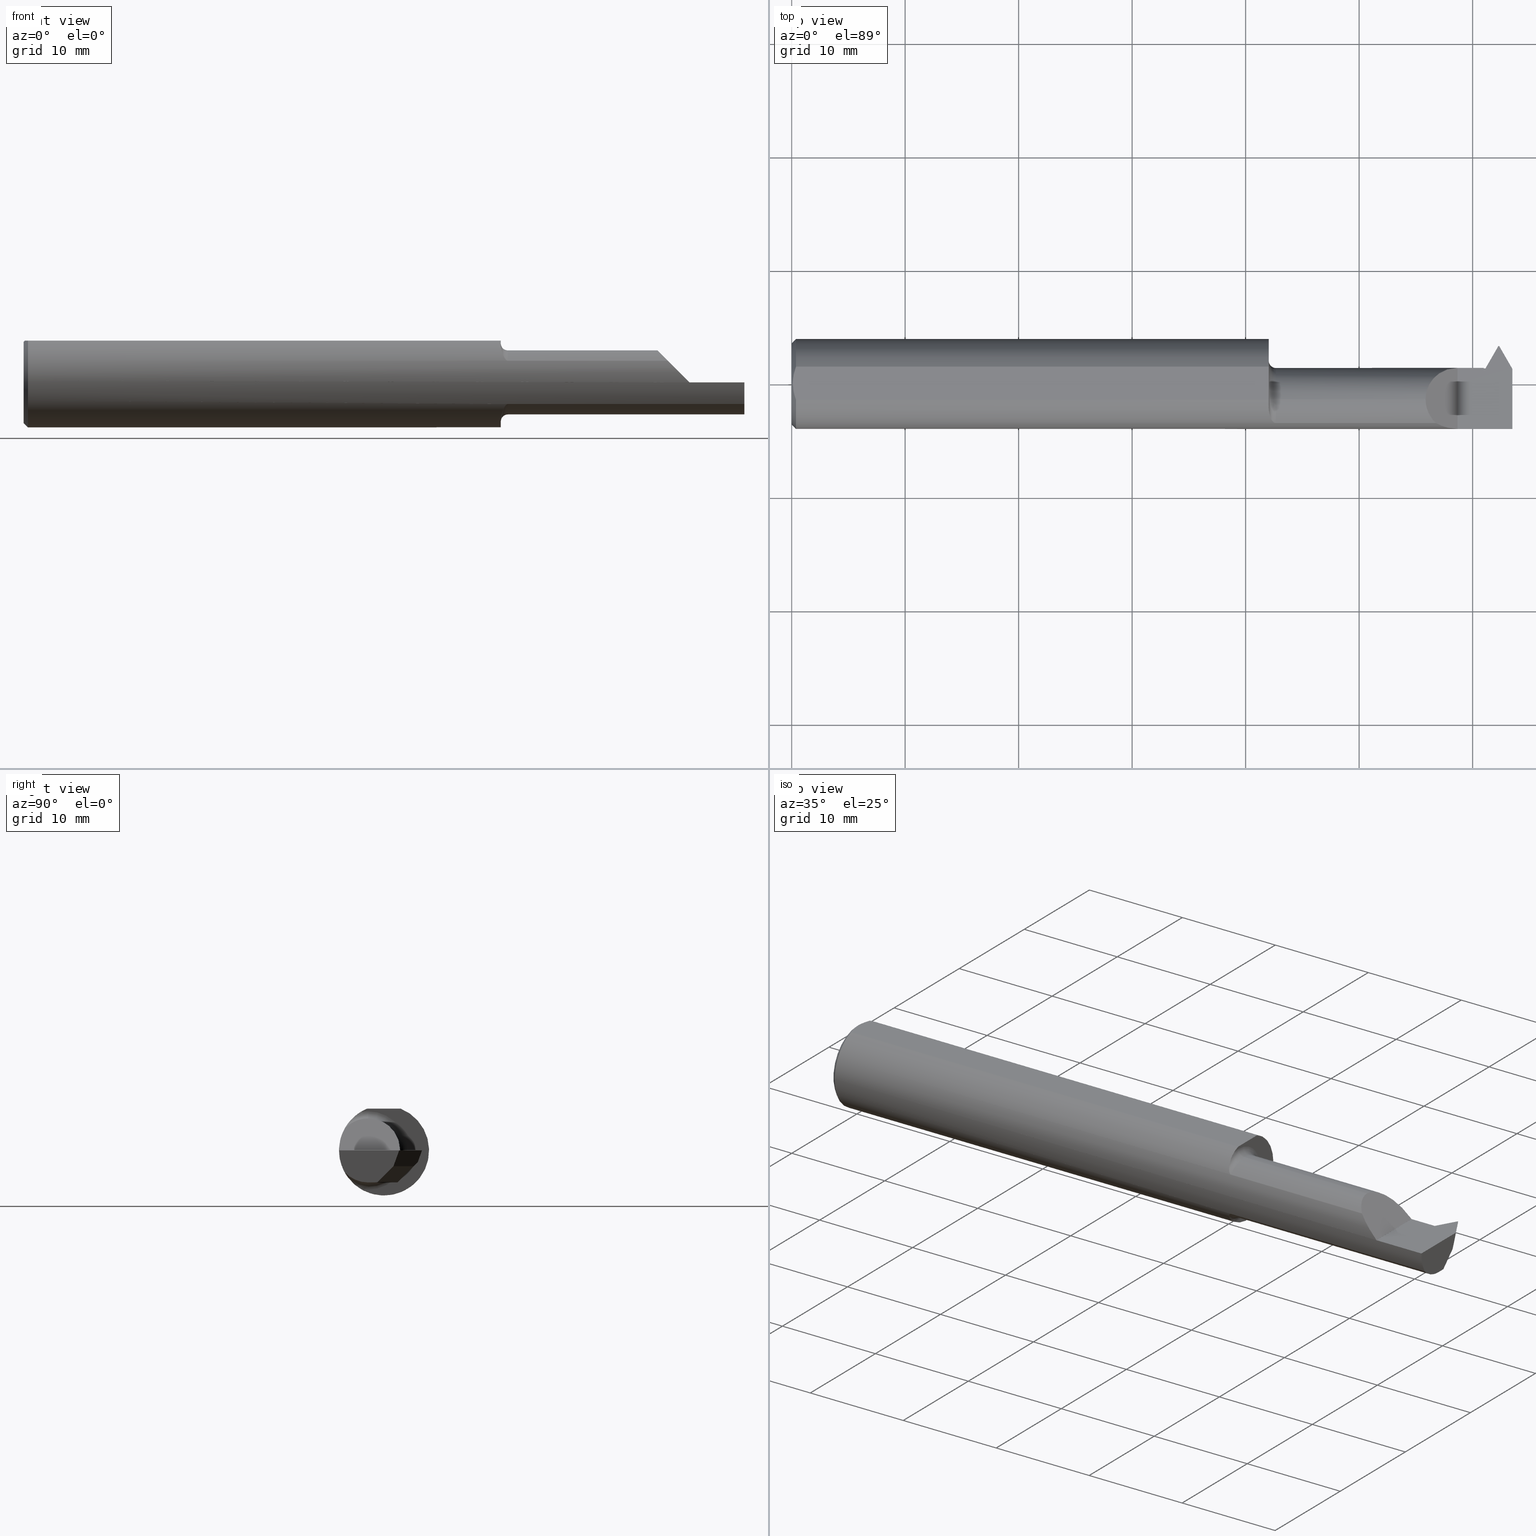
[diagram: canonical four-view strip — front | top / right | iso, engineering-drawing reading convention]
A machine part, canonical four-view strip (front | top / right | iso — engineering-drawing reading convention). The complete STEP part file that produces these views, byte-faithful:
ISO-10303-21;
HEADER;
FILE_DESCRIPTION (( 'STEP AP203' ),
    '1' );
FILE_NAME ('230328-TT290750.STEP',
    '2025-04-22T22:59:45',
    ( '' ),
    ( '' ),
    'SwSTEP 2.0',
    'SolidWorks 2024',
    '' );
FILE_SCHEMA (( 'CONFIG_CONTROL_DESIGN' ));
ENDSEC;

DATA;
#1 = CARTESIAN_POINT ( 'NONE',  ( 2.310000000000000053, -0.1560999999999999888, -3.979970649922725226E-17 ) ) ;
#2 = DIRECTION ( 'NONE',  ( 1.000000000000000000, 0.000000000000000000, 0.000000000000000000 ) ) ;
#3 = VECTOR ( 'NONE', #726, 39.37007874015748143 ) ;
#4 = ORIENTED_EDGE ( 'NONE', *, *, #361, .T. ) ;
#5 = CARTESIAN_POINT ( 'NONE',  ( 0.000000000000000000, 0.000000000000000000, 0.000000000000000000 ) ) ;
#6 = EDGE_CURVE ( 'NONE', #296, #499, #430, .T. ) ;
#7 = DIRECTION ( 'NONE',  ( -1.000000000000000000, -0.000000000000000000, -0.000000000000000000 ) ) ;
#8 = CARTESIAN_POINT ( 'NONE',  ( 2.500000000000000000, -0.05510000000000080111, -0.1109999999999999737 ) ) ;
#9 = EDGE_LOOP ( 'NONE', ( #609, #956, #647, #954 ) ) ;
#10 = DIRECTION ( 'NONE',  ( 1.000000000000000000, 0.000000000000000000, 0.000000000000000000 ) ) ;
#11 = EDGE_CURVE ( 'NONE', #240, #858, #220, .T. ) ;
#12 = PLANE ( 'NONE',  #854 ) ;
#13 = CARTESIAN_POINT ( 'NONE',  ( 2.199100000000000499, -0.05509999999999999620, 0.1110000000000000014 ) ) ;
#14 = ORIENTED_EDGE ( 'NONE', *, *, #697, .F. ) ;
#15 = CARTESIAN_POINT ( 'NONE',  ( 2.406716679003209070, 0.05389999999999999653, 0.000000000000000000 ) ) ;
#16 = LINE ( 'NONE', #910, #610 ) ;
#17 = ADVANCED_FACE ( 'NONE', ( #589 ), #362, .T. ) ;
#18 = VECTOR ( 'NONE', #102, 39.37007874015748143 ) ;
#19 = CIRCLE ( 'NONE', #566, 0.1560999999999999888 ) ;
#20 = EDGE_LOOP ( 'NONE', ( #819, #453, #193, #251, #595, #418 ) ) ;
#21 = DATE_AND_TIME ( #561, #506 ) ;
#22 = DIRECTION ( 'NONE',  ( 0.000000000000000000, 1.000000000000000000, -1.224646799147353207E-16 ) ) ;
#23 = DIRECTION ( 'NONE',  ( 1.000000000000000000, 0.000000000000000000, 0.000000000000000000 ) ) ;
#24 = VERTEX_POINT ( 'NONE', #872 ) ;
#25 = PERSON_AND_ORGANIZATION_ROLE ( 'creator' ) ;
#26 = DIRECTION ( 'NONE',  ( 1.000000000000000000, -0.000000000000000000, -0.000000000000000000 ) ) ;
#27 = CARTESIAN_POINT ( 'NONE',  ( 2.454500701057454659, 0.06352100603404026158, -0.1878697418865058755 ) ) ;
#28 = ORIENTED_EDGE ( 'NONE', *, *, #46, .F. ) ;
#29 = EDGE_CURVE ( 'NONE', #352, #858, #277, .T. ) ;
#30 = DIRECTION ( 'NONE',  ( 0.1779435454738421407, 0.000000000000000000, 0.9840406976462907629 ) ) ;
#31 = PLANE ( 'NONE',  #932 ) ;
#32 = VERTEX_POINT ( 'NONE', #663 ) ;
#33 = AXIS2_PLACEMENT_3D ( 'NONE', #594, #943, #884 ) ;
#34 = TOROIDAL_SURFACE ( 'NONE', #749, 0.1360000000000000098, 0.02500000000000000139 ) ;
#35 = ADVANCED_FACE ( 'NONE', ( #879 ), #61, .T. ) ;
#36 = CARTESIAN_POINT ( 'NONE',  ( 1.676348515781200810, -0.1364107636049786132, 0.07590013438261603018 ) ) ;
#37 = CARTESIAN_POINT ( 'NONE',  ( 2.451696622366127176, 0.1173411906293524987, -0.04000000000000000777 ) ) ;
#38 = ORIENTED_EDGE ( 'NONE', *, *, #796, .F. ) ;
#39 = CARTESIAN_POINT ( 'NONE',  ( 1.678086506300958236, -0.1368622504537204410, 0.07507286061382699438 ) ) ;
#40 = PRODUCT_DEFINITION ( 'UNKNOWN', '', #689, #261 ) ;
#41 = CARTESIAN_POINT ( 'NONE',  ( 2.199100000000000943, 0.009875857480521079562, 0.1110000000000000014 ) ) ;
#42 = ORIENTED_EDGE ( 'NONE', *, *, #434, .F. ) ;
#43 = DIRECTION ( 'NONE',  ( 0.5000000000000023315, -0.8660254037844373753, 0.000000000000000000 ) ) ;
#44 = DIRECTION ( 'NONE',  ( -0.7745966692414835153, -0.4472135954999578722, 0.4472135954999578722 ) ) ;
#45 = VERTEX_POINT ( 'NONE', #244 ) ;
#46 = EDGE_CURVE ( 'NONE', #353, #347, #349, .T. ) ;
#47 = AXIS2_PLACEMENT_3D ( 'NONE', #588, #939, #133 ) ;
#48 = VECTOR ( 'NONE', #603, 39.37007874015748854 ) ;
#49 = DIRECTION ( 'NONE',  ( 0.000000000000000000, 0.000000000000000000, 1.000000000000000000 ) ) ;
#50 = CARTESIAN_POINT ( 'NONE',  ( 2.500000000000000000, 0.1097552276659281845, -0.1110000000000011811 ) ) ;
#51 = ORIENTED_EDGE ( 'NONE', *, *, #510, .T. ) ;
#52 = DIRECTION ( 'NONE',  ( 0.000000000000000000, -4.460787827492321673E-15, 1.000000000000000000 ) ) ;
#53 = CARTESIAN_POINT ( 'NONE',  ( 2.500000000000000000, 0.04656774611420267523, -0.01684164052992337748 ) ) ;
#54 = ORIENTED_EDGE ( 'NONE', *, *, #958, .F. ) ;
#55 = ORIENTED_EDGE ( 'NONE', *, *, #697, .T. ) ;
#56 = CARTESIAN_POINT ( 'NONE',  ( 2.500000000000000000, -0.05756040305626781983, 0.1450999999999999512 ) ) ;
#57 = EDGE_CURVE ( 'NONE', #620, #560, #887, .T. ) ;
#58 = PLANE ( 'NONE',  #612 ) ;
#59 = VERTEX_POINT ( 'NONE', #830 ) ;
#60 = CARTESIAN_POINT ( 'NONE',  ( 2.522557777814836477, -0.7168287149263680158, -1.006480143352121770 ) ) ;
#61 = CONICAL_SURFACE ( 'NONE', #405, 0.1560999999999999888, 0.7853981633974471688 ) ;
#62 = AXIS2_PLACEMENT_3D ( 'NONE', #538, #881, #760 ) ;
#63 = DIRECTION ( 'NONE',  ( 0.5000000000000026645, -0.8660254037844370423, 6.371388158047651217E-15 ) ) ;
#64 = DIRECTION ( 'NONE',  ( -4.487113473581091491E-15, -0.7071067811865435759, -0.7071067811865513475 ) ) ;
#65 = CARTESIAN_POINT ( 'NONE',  ( 2.411644403619502608, 0.04536493059887507229, -0.04719955211401832829 ) ) ;
#66 = CARTESIAN_POINT ( 'NONE',  ( 0.003999999999999637526, 1.884449684559922719E-17, 0.1450999999999999512 ) ) ;
#67 = ORIENTED_EDGE ( 'NONE', *, *, #186, .T. ) ;
#68 = EDGE_CURVE ( 'NONE', #113, #148, #905, .T. ) ;
#69 = EDGE_LOOP ( 'NONE', ( #522, #911, #664, #750, #28 ) ) ;
#70 = DIRECTION ( 'NONE',  ( 0.000000000000000000, 0.000000000000000000, -1.000000000000000000 ) ) ;
#71 = DIRECTION ( 'NONE',  ( 1.000000000000000000, 0.000000000000000000, 0.000000000000000000 ) ) ;
#72 = CARTESIAN_POINT ( 'NONE',  ( 2.412458785480013024, 0.04395437983970537643, -0.05500000000000004191 ) ) ;
#73 = EDGE_CURVE ( 'NONE', #32, #401, #579, .T. ) ;
#74 = ORIENTED_EDGE ( 'NONE', *, *, #177, .F. ) ;
#75 = LINE ( 'NONE', #533, #294 ) ;
#76 = CARTESIAN_POINT ( 'NONE',  ( 2.406716679003209070, 0.05389999999999999653, 0.000000000000000000 ) ) ;
#77 = VECTOR ( 'NONE', #891, 39.37007874015748854 ) ;
#78 = CARTESIAN_POINT ( 'NONE',  ( 2.398037538417669534, 0.05590000000000001218, -0.01638262716674719274 ) ) ;
#79 = CIRCLE ( 'NONE', #629, 0.1110000000000000014 ) ;
#80 = VECTOR ( 'NONE', #745, 39.37007874015748854 ) ;
#81 = ORIENTED_EDGE ( 'NONE', *, *, #824, .F. ) ;
#82 = PERSON_AND_ORGANIZATION_ROLE ( 'design_owner' ) ;
#83 = CARTESIAN_POINT ( 'NONE',  ( 1.655000000000000249, -0.05509999999999999620, 0.000000000000000000 ) ) ;
#84 = PLANE ( 'NONE',  #473 ) ;
#85 = ORIENTED_EDGE ( 'NONE', *, *, #206, .T. ) ;
#86 = LINE ( 'NONE', #670, #80 ) ;
#87 = EDGE_CURVE ( 'NONE', #269, #624, #16, .T. ) ;
#88 = CARTESIAN_POINT ( 'NONE',  ( 1.655000000000000249, 0.1749999999999999889, 0.1450999999999999512 ) ) ;
#89 = CARTESIAN_POINT ( 'NONE',  ( 0.000000000000000000, 1.819825143532968629E-17, 0.1411000000000003085 ) ) ;
#90 = ORIENTED_EDGE ( 'NONE', *, *, #807, .T. ) ;
#91 = APPROVAL_STATUS ( 'not_yet_approved' ) ;
#92 = DIRECTION ( 'NONE',  ( 1.000000000000000000, -0.000000000000000000, -0.000000000000000000 ) ) ;
#93 = CARTESIAN_POINT ( 'NONE',  ( 0.003999999999999590689, -0.009851916903761231276, 0.1450999999999999235 ) ) ;
#94 = VECTOR ( 'NONE', #577, 39.37007874015748143 ) ;
#95 = AXIS2_PLACEMENT_3D ( 'NONE', #628, #558, #253 ) ;
#96 = VERTEX_POINT ( 'NONE', #152 ) ;
#97 = CARTESIAN_POINT ( 'NONE',  ( 2.412458785480013024, -0.03604562016029463911, -0.1350000000000000644 ) ) ;
#98 = DIRECTION ( 'NONE',  ( -0.1021978390768666090, 0.1770118497048815964, 0.9788883525469466163 ) ) ;
#99 = VERTEX_POINT ( 'NONE', #8 ) ;
#100 = ADVANCED_FACE ( 'NONE', ( #527 ), #84, .F. ) ;
#101 = CARTESIAN_POINT ( 'NONE',  ( 2.500000000000000000, -0.05510000000000080111, -0.1109999999999999737 ) ) ;
#102 = DIRECTION ( 'NONE',  ( -1.000000000000000000, -0.000000000000000000, -0.000000000000000000 ) ) ;
#103 = EDGE_LOOP ( 'NONE', ( #936, #328, #580, #840, #74, #641, #482, #659, #265 ) ) ;
#104 = EDGE_CURVE ( 'NONE', #915, #800, #295, .T. ) ;
#105 = COORDINATED_UNIVERSAL_TIME_OFFSET ( 8, 0, .BEHIND. ) ;
#106 = CARTESIAN_POINT ( 'NONE',  ( 2.446168426406539531, 0.1173411906293526652, -0.03999999999999985512 ) ) ;
#107 = CARTESIAN_POINT ( 'NONE',  ( 2.459831573593460607, 0.1023411906293526935, -0.05500000000000002803 ) ) ;
#108 = EDGE_LOOP ( 'NONE', ( #383, #650, #831, #795, #134, #413, #55, #175, #90, #338, #235, #953, #591, #637 ) ) ;
#109 = AXIS2_PLACEMENT_3D ( 'NONE', #319, #165, #336 ) ;
#110 = APPROVAL_ROLE ( '' ) ;
#111 = CARTESIAN_POINT ( 'NONE',  ( 2.310000000000000053, 0.05590000000000001218, -3.979970649922725226E-17 ) ) ;
#112 = DIRECTION ( 'NONE',  ( 0.001253963230748920705, -0.3420198744252467282, -0.9396918819881091567 ) ) ;
#113 = VERTEX_POINT ( 'NONE', #370 ) ;
#114 = CARTESIAN_POINT ( 'NONE',  ( 1.667545102296319914, -0.1302115092214859715, 0.08616258549502014974 ) ) ;
#115 = ADVANCED_FACE ( 'NONE', ( #604 ), #672, .F. ) ;
#116 = DIRECTION ( 'NONE',  ( 0.000000000000000000, 0.000000000000000000, -1.000000000000000000 ) ) ;
#117 = ORIENTED_EDGE ( 'NONE', *, *, #452, .T. ) ;
#118 = LINE ( 'NONE', #419, #439 ) ;
#119 = CARTESIAN_POINT ( 'NONE',  ( 2.412458785480013024, 0.03700406005429889011, -0.06195031978540653517 ) ) ;
#120 = ORIENTED_EDGE ( 'NONE', *, *, #598, .T. ) ;
#121 = VECTOR ( 'NONE', #919, 39.37007874015748143 ) ;
#122 = DIRECTION ( 'NONE',  ( 0.000000000000000000, 0.000000000000000000, 1.000000000000000000 ) ) ;
#123 = CARTESIAN_POINT ( 'NONE',  ( 2.399999999999999911, 0.1173411906293525125, -0.04000000000000000083 ) ) ;
#124 = EDGE_LOOP ( 'NONE', ( #491, #215 ) ) ;
#125 = EDGE_CURVE ( 'NONE', #24, #620, #601, .T. ) ;
#126 = ORIENTED_EDGE ( 'NONE', *, *, #900, .F. ) ;
#127 = CARTESIAN_POINT ( 'NONE',  ( 1.655000000000000249, -0.05509999999999999620, 0.000000000000000000 ) ) ;
#128 = DIRECTION ( 'NONE',  ( 0.000000000000000000, -1.000000000000000000, 0.000000000000000000 ) ) ;
#129 = ORIENTED_EDGE ( 'NONE', *, *, #481, .T. ) ;
#130 = ORIENTED_EDGE ( 'NONE', *, *, #452, .F. ) ;
#131 = ADVANCED_FACE ( 'NONE', ( #817 ), #161, .T. ) ;
#132 = PLANE ( 'NONE',  #424 ) ;
#133 = DIRECTION ( 'NONE',  ( 0.000000000000000000, 0.000000000000000000, -1.000000000000000000 ) ) ;
#134 = ORIENTED_EDGE ( 'NONE', *, *, #380, .T. ) ;
#135 = ORIENTED_EDGE ( 'NONE', *, *, #206, .F. ) ;
#136 = CARTESIAN_POINT ( 'NONE',  ( 2.310000000000000053, -0.1560999679692471886, 9.999999999973052634E-05 ) ) ;
#137 = AXIS2_PLACEMENT_3D ( 'NONE', #865, #717, #878 ) ;
#138 = CIRCLE ( 'NONE', #326, 0.1560999999999999888 ) ;
#139 = CARTESIAN_POINT ( 'NONE',  ( 2.446168426406539975, 0.04634119062935252581, -0.1110000000000007092 ) ) ;
#140 = APPROVAL_PERSON_ORGANIZATION ( #707, #164, #185 ) ;
#141 = ORIENTED_EDGE ( 'NONE', *, *, #948, .F. ) ;
#142 = DIRECTION ( 'NONE',  ( -0.01827811026638678088, 0.9998329413882549588, -7.352226825046555945E-15 ) ) ;
#143 = CARTESIAN_POINT ( 'NONE',  ( 2.412458785480013024, -0.03604562016029463911, -0.1350000000000000644 ) ) ;
#144 = ORIENTED_EDGE ( 'NONE', *, *, #68, .F. ) ;
#145 = DIRECTION ( 'NONE',  ( -0.000000000000000000, 1.000000000000000000, -7.353467429283449659E-15 ) ) ;
#146 = CARTESIAN_POINT ( 'NONE',  ( 1.673506495904680591, -0.1352163519649314249, -0.07800775850415037072 ) ) ;
#147 = CARTESIAN_POINT ( 'NONE',  ( 2.500000000000000000, 0.05265867555372412412, 0.000000000000000000 ) ) ;
#148 = VERTEX_POINT ( 'NONE', #147 ) ;
#149 = VECTOR ( 'NONE', #173, 39.37007874015748854 ) ;
#150 = CARTESIAN_POINT ( 'NONE',  ( 0.01499999999999970281, 1.911673653469018068E-17, 0.1560999999999999888 ) ) ;
#151 = VECTOR ( 'NONE', #411, 39.37007874015748143 ) ;
#152 = CARTESIAN_POINT ( 'NONE',  ( 0.01499999999999970281, 0.05756040305626781983, 0.1450999999999999512 ) ) ;
#153 = ORIENTED_EDGE ( 'NONE', *, *, #818, .F. ) ;
#154 = EDGE_CURVE ( 'NONE', #347, #764, #532, .T. ) ;
#155 = APPROVAL_STATUS ( 'not_yet_approved' ) ;
#156 = CARTESIAN_POINT ( 'NONE',  ( 1.680000000000000160, -0.1368622504537204410, -0.07507286061382698050 ) ) ;
#157 = CARTESIAN_POINT ( 'NONE',  ( 1.680000000000000160, -0.05509999999999999620, 0.000000000000000000 ) ) ;
#158 = ORIENTED_EDGE ( 'NONE', *, *, #197, .T. ) ;
#159 = DIRECTION ( 'NONE',  ( -0.000000000000000000, 0.000000000000000000, -1.000000000000000000 ) ) ;
#160 = FACE_OUTER_BOUND ( 'NONE', #9, .T. ) ;
#161 = PLANE ( 'NONE',  #809 ) ;
#162 = ORIENTED_EDGE ( 'NONE', *, *, #166, .F. ) ;
#163 = PERSON_AND_ORGANIZATION_ROLE ( 'classification_officer' ) ;
#164 = APPROVAL ( #546, 'UNSPECIFIED' ) ;
#165 = DIRECTION ( 'NONE',  ( -1.000000000000000000, -0.000000000000000000, -0.000000000000000000 ) ) ;
#166 = EDGE_CURVE ( 'NONE', #296, #950, #449, .T. ) ;
#167 = DIRECTION ( 'NONE',  ( 0.000000000000000000, 0.000000000000000000, -1.000000000000000000 ) ) ;
#168 = AXIS2_PLACEMENT_3D ( 'NONE', #767, #26, #52 ) ;
#169 = ORIENTED_EDGE ( 'NONE', *, *, #260, .T. ) ;
#170 = SECURITY_CLASSIFICATION ( '', '', #836 ) ;
#171 = APPROVAL_ROLE ( '' ) ;
#172 = DIRECTION ( 'NONE',  ( -4.487113473581115157E-15, 0.7071067811865436870, 0.7071067811865513475 ) ) ;
#173 = DIRECTION ( 'NONE',  ( -0.2521791579305336373, 0.6842534882283891617, 0.6842534882283966002 ) ) ;
#174 = ADVANCED_FACE ( 'NONE', ( #682 ), #201, .F. ) ;
#175 = ORIENTED_EDGE ( 'NONE', *, *, #197, .F. ) ;
#176 = DIRECTION ( 'NONE',  ( -0.000000000000000000, 0.000000000000000000, -1.000000000000000000 ) ) ;
#177 = EDGE_CURVE ( 'NONE', #394, #296, #222, .T. ) ;
#178 = ORIENTED_EDGE ( 'NONE', *, *, #73, .T. ) ;
#179 = CALENDAR_DATE ( 2025, 22, 4 ) ;
#180 = CARTESIAN_POINT ( 'NONE',  ( 2.451750000000000096, 0.1318999999999999617, -3.979970649922725226E-17 ) ) ;
#181 = CARTESIAN_POINT ( 'NONE',  ( 2.406716679003209070, 0.05389999999999999653, 0.000000000000000000 ) ) ;
#182 = VERTEX_POINT ( 'NONE', #89 ) ;
#183 = AXIS2_PLACEMENT_3D ( 'NONE', #459, #2, #896 ) ;
#184 = AXIS2_PLACEMENT_3D ( 'NONE', #272, #7, #894 ) ;
#185 = APPROVAL_ROLE ( '' ) ;
#186 = EDGE_CURVE ( 'NONE', #575, #495, #695, .T. ) ;
#187 = LINE ( 'NONE', #838, #121 ) ;
#188 = DIRECTION ( 'NONE',  ( 0.000000000000000000, 0.000000000000000000, 1.000000000000000000 ) ) ;
#189 = ORIENTED_EDGE ( 'NONE', *, *, #271, .T. ) ;
#190 = DIRECTION ( 'NONE',  ( 0.09000871797897587456, -0.6219594709071027960, -0.7778591435708254176 ) ) ;
#191 = CARTESIAN_POINT ( 'NONE',  ( 0.003999999999999592423, 0.009855731042683129120, 0.1450999999999999790 ) ) ;
#192 = MANIFOLD_SOLID_BREP ( 'Cut-Sweep1', #883 ) ;
#193 = ORIENTED_EDGE ( 'NONE', *, *, #229, .T. ) ;
#194 = DIRECTION ( 'NONE',  ( 0.000000000000000000, 0.000000000000000000, -1.000000000000000000 ) ) ;
#195 = ADVANCED_FACE ( 'NONE', ( #623 ), #416, .F. ) ;
#196 = CARTESIAN_POINT ( 'NONE',  ( 2.258128869355540136, -0.1495342103855425986, 0.05197113064445998271 ) ) ;
#197 = EDGE_CURVE ( 'NONE', #59, #211, #324, .T. ) ;
#198 = EDGE_LOOP ( 'NONE', ( #931, #51, #805, #14 ) ) ;
#199 = VECTOR ( 'NONE', #112, 39.37007874015748143 ) ;
#200 = VERTEX_POINT ( 'NONE', #851 ) ;
#201 = TOROIDAL_SURFACE ( 'NONE', #916, 0.1360000000000000098, 0.02500000000000000139 ) ;
#202 = AXIS2_PLACEMENT_3D ( 'NONE', #435, #731, #952 ) ;
#203 = LINE ( 'NONE', #60, #234 ) ;
#204 = CARTESIAN_POINT ( 'NONE',  ( 1.680000000000000160, -0.1368622504537204410, -0.07507286061382698050 ) ) ;
#205 = CARTESIAN_POINT ( 'NONE',  ( 2.399999999999999911, 0.04634119062935222050, -0.1110000000000010562 ) ) ;
#206 = EDGE_CURVE ( 'NONE', #240, #495, #786, .T. ) ;
#207 = CARTESIAN_POINT ( 'NONE',  ( 1.680000000000000160, -0.05509999999999999620, 0.000000000000000000 ) ) ;
#208 = DIRECTION ( 'NONE',  ( -1.000000000000000000, -0.000000000000000000, -0.000000000000000000 ) ) ;
#209 = EDGE_LOOP ( 'NONE', ( #602, #367, #706, #949, #743, #431 ) ) ;
#210 = CC_DESIGN_PERSON_AND_ORGANIZATION_ASSIGNMENT ( #753, #82, ( #524 ) ) ;
#211 = VERTEX_POINT ( 'NONE', #559 ) ;
#212 = CARTESIAN_POINT ( 'NONE',  ( 2.416039260333789240, 0.02654051824741836610, -0.08726758657088898308 ) ) ;
#213 = PLANE ( 'NONE',  #716 ) ;
#214 = ORIENTED_EDGE ( 'NONE', *, *, #417, .F. ) ;
#215 = ORIENTED_EDGE ( 'NONE', *, *, #709, .F. ) ;
#216 = EDGE_CURVE ( 'NONE', #394, #616, #701, .T. ) ;
#217 = CIRCLE ( 'NONE', #47, 0.1110000000000000014 ) ;
#218 = AXIS2_PLACEMENT_3D ( 'NONE', #488, #176, #479 ) ;
#219 = DIRECTION ( 'NONE',  ( 0.000000000000000000, 0.000000000000000000, 1.000000000000000000 ) ) ;
#220 = LINE ( 'NONE', #654, #765 ) ;
#221 = DIRECTION ( 'NONE',  ( -1.000000000000000000, -7.250278991207125343E-15, 0.000000000000000000 ) ) ;
#222 =( BOUNDED_CURVE ( )  B_SPLINE_CURVE ( 3, ( #311, #615, #41, #485 ),
 .UNSPECIFIED., .F., .F. ) 
 B_SPLINE_CURVE_WITH_KNOTS ( ( 4, 4 ),
 ( 4.713289881407453308, 6.283185307179586232 ),
 .UNSPECIFIED. ) 
 CURVE ( )  GEOMETRIC_REPRESENTATION_ITEM ( )  RATIONAL_B_SPLINE_CURVE ( ( 1.000000000000000000, 0.8049501506993195221, 0.8049501506993195221, 1.000000000000000000 ) ) 
 REPRESENTATION_ITEM ( '' )  );
#223 = DIRECTION ( 'NONE',  ( 0.000000000000000000, -0.1779435454738421407, -0.9840406976462907629 ) ) ;
#224 = DIRECTION ( 'NONE',  ( -1.000000000000000000, -0.000000000000000000, -0.000000000000000000 ) ) ;
#225 = ORIENTED_EDGE ( 'NONE', *, *, #721, .F. ) ;
#226 = MECHANICAL_CONTEXT ( 'NONE', #599, 'mechanical' ) ;
#227 = DIRECTION ( 'NONE',  ( 0.5000000000000046629, 0.000000000000000000, -0.8660254037844359321 ) ) ;
#228 = CARTESIAN_POINT ( 'NONE',  ( 0.01499999999999970281, 0.000000000000000000, 0.000000000000000000 ) ) ;
#229 = EDGE_CURVE ( 'NONE', #915, #24, #921, .T. ) ;
#230 = EDGE_LOOP ( 'NONE', ( #158, #120, #536, #940, #178, #466 ) ) ;
#231 = PERSON_AND_ORGANIZATION ( #735, #871 ) ;
#232 = AXIS2_PLACEMENT_3D ( 'NONE', #713, #552, #188 ) ;
#233 = CARTESIAN_POINT ( 'NONE',  ( 2.500000000000000000, -0.02323256476686515540, -0.1110000000000001957 ) ) ;
#234 = VECTOR ( 'NONE', #190, 39.37007874015748854 ) ;
#235 = ORIENTED_EDGE ( 'NONE', *, *, #900, .T. ) ;
#236 = DIMENSIONAL_EXPONENTS ( 1.000000000000000000, 0.000000000000000000, 0.000000000000000000, 0.000000000000000000, 0.000000000000000000, 0.000000000000000000, 0.000000000000000000 ) ;
#237 = CARTESIAN_POINT ( 'NONE',  ( 2.412458785480013024, 0.04395437983970539031, -0.05500000000000003497 ) ) ;
#238 = CARTESIAN_POINT ( 'NONE',  ( 1.656469879655009692, -0.1049921135599801297, -0.1164346218518444720 ) ) ;
#239 = DIRECTION ( 'NONE',  ( 0.9947640934854949935, 0.01818544582510440988, 0.1005668328631443009 ) ) ;
#240 = VERTEX_POINT ( 'NONE', #107 ) ;
#241 = COORDINATED_UNIVERSAL_TIME_OFFSET ( 8, 0, .BEHIND. ) ;
#242 = ADVANCED_FACE ( 'NONE', ( #710 ), #925, .T. ) ;
#243 = CARTESIAN_POINT ( 'NONE',  ( 1.655000000000000249, -0.08082776769509972259, 0.1335443071397166837 ) ) ;
#244 = CARTESIAN_POINT ( 'NONE',  ( 2.500000000000000000, 0.03276743523313500189, -0.05500000000000003497 ) ) ;
#245 = EDGE_LOOP ( 'NONE', ( #778, #700, #38, #787, #740 ) ) ;
#246 = PERSON_AND_ORGANIZATION ( #735, #871 ) ;
#247 = ADVANCED_FACE ( 'NONE', ( #861 ), #518, .T. ) ;
#248 = CARTESIAN_POINT ( 'NONE',  ( 1.673464868753673951, -0.1351961852369925332, 0.07804305429669788907 ) ) ;
#249 = CARTESIAN_POINT ( 'NONE',  ( 2.199100000000000499, -0.05509999999999999620, 0.1110000000000000014 ) ) ;
#250 = CIRCLE ( 'NONE', #407, 0.1560999999999999888 ) ;
#251 = ORIENTED_EDGE ( 'NONE', *, *, #348, .T. ) ;
#252 = LOCAL_TIME ( 15, 59, 45.00000000000000000, #410 ) ;
#253 = DIRECTION ( 'NONE',  ( -0.7071067811865461294, 0.000000000000000000, 0.7071067811865487940 ) ) ;
#254 = DIRECTION ( 'NONE',  ( -0.000000000000000000, 0.000000000000000000, 1.000000000000000000 ) ) ;
#255 =( BOUNDED_CURVE ( )  B_SPLINE_CURVE ( 3, ( #119, #441, #727, #653 ),
 .UNSPECIFIED., .F., .F. ) 
 B_SPLINE_CURVE_WITH_KNOTS ( ( 4, 4 ),
 ( 2.948301984786013463, 3.334883322393572769 ),
 .UNSPECIFIED. ) 
 CURVE ( )  GEOMETRIC_REPRESENTATION_ITEM ( )  RATIONAL_B_SPLINE_CURVE ( ( 1.000000000000000000, 0.9875849649017640619, 0.9875849649017640619, 1.000000000000000000 ) ) 
 REPRESENTATION_ITEM ( '' )  );
#256 = ORIENTED_EDGE ( 'NONE', *, *, #849, .F. ) ;
#257 = CARTESIAN_POINT ( 'NONE',  ( 1.661300778209995777, -0.1198130594394493237, 0.1003199648005457800 ) ) ;
#258 = CARTESIAN_POINT ( 'NONE',  ( 2.453000000000000291, 0.03417382318887187548, -0.1350000000000000644 ) ) ;
#259 = ORIENTED_EDGE ( 'NONE', *, *, #417, .T. ) ;
#260 = EDGE_CURVE ( 'NONE', #866, #950, #783, .T. ) ;
#261 = DESIGN_CONTEXT ( 'detailed design', #568, 'design' ) ;
#262 = DATE_AND_TIME ( #472, #252 ) ;
#263 = LINE ( 'NONE', #101, #646 ) ;
#264 = DIRECTION ( 'NONE',  ( 1.000000000000000000, 0.000000000000000000, 0.000000000000000000 ) ) ;
#265 = ORIENTED_EDGE ( 'NONE', *, *, #125, .F. ) ;
#266 = AXIS2_PLACEMENT_3D ( 'NONE', #15, #539, #223 ) ;
#267 = DIRECTION ( 'NONE',  ( 1.000000000000000000, 0.000000000000000000, 0.000000000000000000 ) ) ;
#268 = DIRECTION ( 'NONE',  ( 0.5000000000000074385, 0.8660254037844342667, -6.371388158047629918E-15 ) ) ;
#269 = VERTEX_POINT ( 'NONE', #37 ) ;
#270 = DIRECTION ( 'NONE',  ( -1.000000000000000000, -0.000000000000000000, -0.000000000000000000 ) ) ;
#271 = EDGE_CURVE ( 'NONE', #96, #353, #385, .T. ) ;
#272 = CARTESIAN_POINT ( 'NONE',  ( 0.000000000000000000, 0.000000000000000000, 0.000000000000000000 ) ) ;
#273 = DIRECTION ( 'NONE',  ( 1.000000000000000000, -0.000000000000000000, -0.000000000000000000 ) ) ;
#274 = DIRECTION ( 'NONE',  ( -1.000000000000000000, -0.000000000000000000, -0.000000000000000000 ) ) ;
#275 = EDGE_CURVE ( 'NONE', #804, #334, #780, .T. ) ;
#276 = CARTESIAN_POINT ( 'NONE',  ( 1.655000000000000249, 0.05756040305626781289, 0.1450999999999999512 ) ) ;
#277 = LINE ( 'NONE', #205, #853 ) ;
#278 = AXIS2_PLACEMENT_3D ( 'NONE', #571, #333, #777 ) ;
#279 = ORIENTED_EDGE ( 'NONE', *, *, #422, .F. ) ;
#280 = VECTOR ( 'NONE', #622, 39.37007874015748854 ) ;
#281 = LINE ( 'NONE', #56, #658 ) ;
#282 = CARTESIAN_POINT ( 'NONE',  ( 2.310000000000000053, -0.1560999679692471886, 9.999999999973052634E-05 ) ) ;
#283 = ORIENTED_EDGE ( 'NONE', *, *, #422, .T. ) ;
#284 = ORIENTED_EDGE ( 'NONE', *, *, #361, .F. ) ;
#285 = CYLINDRICAL_SURFACE ( 'NONE', #490, 0.1110000000000000014 ) ;
#286 = LINE ( 'NONE', #882, #794 ) ;
#287 = CARTESIAN_POINT ( 'NONE',  ( 0.01499999999999970281, 0.000000000000000000, 0.000000000000000000 ) ) ;
#288 = ORIENTED_EDGE ( 'NONE', *, *, #492, .F. ) ;
#289 = LINE ( 'NONE', #808, #94 ) ;
#290 = VERTEX_POINT ( 'NONE', #914 ) ;
#291 =( LENGTH_UNIT ( ) NAMED_UNIT ( * ) SI_UNIT ( $, .METRE. ) );
#292 = VECTOR ( 'NONE', #955, 39.37007874015748854 ) ;
#293 = VECTOR ( 'NONE', #63, 39.37007874015748854 ) ;
#294 = VECTOR ( 'NONE', #145, 39.37007874015748143 ) ;
#295 = LINE ( 'NONE', #72, #77 ) ;
#296 = VERTEX_POINT ( 'NONE', #249 ) ;
#297 = EDGE_CURVE ( 'NONE', #774, #352, #773, .T. ) ;
#298 = DIRECTION ( 'NONE',  ( 1.000000000000000000, 0.000000000000000000, 0.000000000000000000 ) ) ;
#299 = DIRECTION ( 'NONE',  ( 0.000000000000000000, -1.000000000000000000, 0.000000000000000000 ) ) ;
#300 = DIRECTION ( 'NONE',  ( -0.000000000000000000, 1.000000000000000000, -0.000000000000000000 ) ) ;
#301 = EDGE_LOOP ( 'NONE', ( #696, #678, #153, #322 ) ) ;
#302 =( CONVERSION_BASED_UNIT ( 'INCH', #467 ) LENGTH_UNIT ( ) NAMED_UNIT ( #236 ) );
#303 = DIRECTION ( 'NONE',  ( -1.000000000000000000, -0.000000000000000000, -0.000000000000000000 ) ) ;
#304 = EDGE_CURVE ( 'NONE', #553, #200, #699, .T. ) ;
#305 = CARTESIAN_POINT ( 'NONE',  ( 2.199100000000000499, -0.08664595039291324297, 0.1110000000000000431 ) ) ;
#306 = ORIENTED_EDGE ( 'NONE', *, *, #668, .F. ) ;
#307 = FACE_OUTER_BOUND ( 'NONE', #388, .T. ) ;
#308 = AXIS2_PLACEMENT_3D ( 'NONE', #340, #645, #480 ) ;
#309 = LINE ( 'NONE', #150, #946 ) ;
#310 = VECTOR ( 'NONE', #221, 39.37007874015748143 ) ;
#311 = CARTESIAN_POINT ( 'NONE',  ( 2.310000000000000053, 0.05589995495494588795, 9.999999999973052634E-05 ) ) ;
#312 = CC_DESIGN_PERSON_AND_ORGANIZATION_ASSIGNMENT ( #927, #908, ( #40 ) ) ;
#313 =( GEOMETRIC_REPRESENTATION_CONTEXT ( 3 ) GLOBAL_UNCERTAINTY_ASSIGNED_CONTEXT ( ( #465 ) ) GLOBAL_UNIT_ASSIGNED_CONTEXT ( ( #302, #828, #592 ) ) REPRESENTATION_CONTEXT ( 'NONE', 'WORKASPACE' ) );
#314 = ORIENTED_EDGE ( 'NONE', *, *, #87, .T. ) ;
#315 = APPROVAL_DATE_TIME ( #625, #719 ) ;
#316 = LINE ( 'NONE', #88, #766 ) ;
#317 = DIRECTION ( 'NONE',  ( 0.000000000000000000, 0.000000000000000000, -1.000000000000000000 ) ) ;
#318 = ORIENTED_EDGE ( 'NONE', *, *, #177, .T. ) ;
#319 = CARTESIAN_POINT ( 'NONE',  ( 1.655000000000000249, -0.05509999999999999620, 0.000000000000000000 ) ) ;
#320 = FACE_OUTER_BOUND ( 'NONE', #301, .T. ) ;
#321 =( BOUNDED_CURVE ( )  B_SPLINE_CURVE ( 3, ( #282, #737, #196, #869 ),
 .UNSPECIFIED., .F., .T. ) 
 B_SPLINE_CURVE_WITH_KNOTS ( ( 4, 4 ),
 ( 4.713029595418895212, 5.214101826882463264 ),
 .UNSPECIFIED. ) 
 CURVE ( )  GEOMETRIC_REPRESENTATION_ITEM ( )  RATIONAL_B_SPLINE_CURVE ( ( 1.000000000000000000, 0.9791864302132653464, 0.9791864302132653464, 1.000000000000000000 ) ) 
 REPRESENTATION_ITEM ( '' )  );
#322 = ORIENTED_EDGE ( 'NONE', *, *, #752, .T. ) ;
#323 = CARTESIAN_POINT ( 'NONE',  ( 2.500000000000000000, -0.04723256476686502059, -0.1350000000000000644 ) ) ;
#324 = CIRCLE ( 'NONE', #357, 0.1560999999999999888 ) ;
#325 = CARTESIAN_POINT ( 'NONE',  ( 2.310000000000000053, 0.1749999999999999889, -3.979970649922725226E-17 ) ) ;
#326 = AXIS2_PLACEMENT_3D ( 'NONE', #369, #444, #521 ) ;
#327 = CIRCLE ( 'NONE', #202, 0.1411000000000003085 ) ;
#328 = ORIENTED_EDGE ( 'NONE', *, *, #304, .T. ) ;
#329 = CC_DESIGN_APPROVAL ( #662, ( #40 ) ) ;
#330 = DATE_AND_TIME ( #398, #457 ) ;
#331 = CARTESIAN_POINT ( 'NONE',  ( 1.669135453872435892, -0.1320388560634702391, 0.08332276230954657747 ) ) ;
#332 = ADVANCED_FACE ( 'NONE', ( #320 ), #31, .F. ) ;
#333 = DIRECTION ( 'NONE',  ( -1.000000000000000000, -0.000000000000000000, -0.000000000000000000 ) ) ;
#334 = VERTEX_POINT ( 'NONE', #555 ) ;
#335 = APPROVAL_DATE_TIME ( #330, #662 ) ;
#336 = DIRECTION ( 'NONE',  ( 0.000000000000000000, 7.093263402666859258E-15, -1.000000000000000000 ) ) ;
#337 = CARTESIAN_POINT ( 'NONE',  ( 2.030499999999999972, -0.1368622504537204410, 0.07507286061382698050 ) ) ;
#338 = ORIENTED_EDGE ( 'NONE', *, *, #154, .T. ) ;
#339 = CARTESIAN_POINT ( 'NONE',  ( 1.655000000000000249, -0.08722028877555598747, 0.1296752301274217145 ) ) ;
#340 = CARTESIAN_POINT ( 'NONE',  ( 1.655000000000000249, -0.05509999999999999620, 0.000000000000000000 ) ) ;
#341 = CC_DESIGN_DATE_AND_TIME_ASSIGNMENT ( #478, #542, ( #40 ) ) ;
#342 = ORIENTED_EDGE ( 'NONE', *, *, #166, .T. ) ;
#343 = CIRCLE ( 'NONE', #702, 0.02499999999999999098 ) ;
#344 = ADVANCED_FACE ( 'NONE', ( #847 ), #564, .F. ) ;
#345 = LINE ( 'NONE', #583, #3 ) ;
#346 = DIRECTION ( 'NONE',  ( -0.000000000000000000, 7.353467429283449659E-15, 1.000000000000000000 ) ) ;
#347 = VERTEX_POINT ( 'NONE', #705 ) ;
#348 = EDGE_CURVE ( 'NONE', #24, #813, #289, .T. ) ;
#349 = B_SPLINE_CURVE_WITH_KNOTS ( 'NONE', 3,
 ( #763, #93, #392, #451, #747, #685 ),
 .UNSPECIFIED., .F., .F.,
 ( 4, 2, 4 ),
 ( 0.004640589759741725780, 0.005379751224090827816, 0.006118912688439928985 ),
 .UNSPECIFIED. ) ;
#350 = CARTESIAN_POINT ( 'NONE',  ( 2.419930999995321574, -0.05510000000000081499, -0.1109999999999999876 ) ) ;
#351 = LINE ( 'NONE', #516, #293 ) ;
#352 = VERTEX_POINT ( 'NONE', #139 ) ;
#353 = VERTEX_POINT ( 'NONE', #66 ) ;
#354 = CARTESIAN_POINT ( 'NONE',  ( 1.655000000000000249, 0.05590000000000001218, -3.979970649922725226E-17 ) ) ;
#355 = CARTESIAN_POINT ( 'NONE',  ( 2.396128570000000124, 0.06349597133486833966, -0.1879385241571824017 ) ) ;
#356 = CARTESIAN_POINT ( 'NONE',  ( 1.655000000000000249, -0.05509999999999999620, 0.1110000000000000014 ) ) ;
#357 = AXIS2_PLACEMENT_3D ( 'NONE', #636, #640, #844 ) ;
#358 = CIRCLE ( 'NONE', #109, 0.1360000000000000098 ) ;
#359 = DIRECTION ( 'NONE',  ( 1.000000000000000000, 0.000000000000000000, 0.000000000000000000 ) ) ;
#360 = DIRECTION ( 'NONE',  ( 6.813033666676467004E-15, -0.9396926207859128688, 0.3420201433256564449 ) ) ;
#361 = EDGE_CURVE ( 'NONE', #686, #290, #255, .T. ) ;
#362 = CYLINDRICAL_SURFACE ( 'NONE', #33, 0.1110000000000000014 ) ;
#363 = ORIENTED_EDGE ( 'NONE', *, *, #668, .T. ) ;
#364 = CARTESIAN_POINT ( 'NONE',  ( 2.310000000000000053, 0.1749999999999999889, 9.999999999973052634E-05 ) ) ;
#365 = PLANE ( 'NONE',  #644 ) ;
#366 = ORIENTED_EDGE ( 'NONE', *, *, #57, .T. ) ;
#367 = ORIENTED_EDGE ( 'NONE', *, *, #434, .T. ) ;
#368 = CARTESIAN_POINT ( 'NONE',  ( 2.310000000000000053, 0.1749999999999999889, -3.979970649922725226E-17 ) ) ;
#369 = CARTESIAN_POINT ( 'NONE',  ( 2.500000000000000000, 0.000000000000000000, 0.000000000000000000 ) ) ;
#370 = CARTESIAN_POINT ( 'NONE',  ( 2.500000000000000000, -0.1560999999999999333, -3.979970649922725226E-17 ) ) ;
#371 = EDGE_LOOP ( 'NONE', ( #67, #892, #314, #669 ) ) ;
#372 = ADVANCED_FACE ( 'NONE', ( #661 ), #365, .F. ) ;
#373 = APPLICATION_PROTOCOL_DEFINITION ( 'international standard', 'config_control_design', 1994, #599 ) ;
#374 = AXIS2_PLACEMENT_3D ( 'NONE', #228, #530, #470 ) ;
#375 = AXIS2_PLACEMENT_3D ( 'NONE', #50, #346, #649 ) ;
#376 = DIRECTION ( 'NONE',  ( 0.7745966692414795185, -0.4472135954999614249, 0.4472135954999612584 ) ) ;
#377 = CARTESIAN_POINT ( 'NONE',  ( 1.655000000000000249, 0.000000000000000000, 0.000000000000000000 ) ) ;
#378 = VERTEX_POINT ( 'NONE', #204 ) ;
#379 = APPLICATION_PROTOCOL_DEFINITION ( 'international standard', 'config_control_design', 1994, #568 ) ;
#380 = EDGE_CURVE ( 'NONE', #835, #950, #321, .T. ) ;
#381 = CARTESIAN_POINT ( 'NONE',  ( 1.676349781358731805, -0.1364086230541974587, -0.07590362166592530546 ) ) ;
#382 = CARTESIAN_POINT ( 'NONE',  ( 2.421917979007493837, -2.344517963444335606, 0.2833398617652338469 ) ) ;
#383 = ORIENTED_EDGE ( 'NONE', *, *, #445, .F. ) ;
#384 = LINE ( 'NONE', #364, #901 ) ;
#385 = B_SPLINE_CURVE_WITH_KNOTS ( 'NONE', 3,
 ( #412, #565, #400, #857, #191, #494 ),
 .UNSPECIFIED., .F., .F.,
 ( 4, 2, 4 ),
 ( 0.003161694502929457244, 0.003901142131335591512, 0.004640589759741725780 ),
 .UNSPECIFIED. ) ;
#386 = CARTESIAN_POINT ( 'NONE',  ( 1.655000000000000471, -0.09362651965208500238, -0.1257978552532720284 ) ) ;
#387 = CARTESIAN_POINT ( 'NONE',  ( 2.400999999999999801, 0.05590000000000001218, 0.000000000000000000 ) ) ;
#388 = EDGE_LOOP ( 'NONE', ( #541, #54, #477, #714, #567, #446, #509, #897, #926 ) ) ;
#389 = PERSON_AND_ORGANIZATION_ROLE ( 'design_supplier' ) ;
#390 = CARTESIAN_POINT ( 'NONE',  ( 2.419930999995321574, -0.05510000000000081499, -0.1109999999999999876 ) ) ;
#391 = AXIS2_PLACEMENT_3D ( 'NONE', #584, #128, #874 ) ;
#392 = CARTESIAN_POINT ( 'NONE',  ( 0.005011318927232567486, -0.01959047621504285061, 0.1450999999999999512 ) ) ;
#393 = EDGE_CURVE ( 'NONE', #499, #866, #217, .T. ) ;
#394 = VERTEX_POINT ( 'NONE', #501 ) ;
#395 = CARTESIAN_POINT ( 'NONE',  ( 1.655398932116762811, -0.09332769694267488425, 0.1253468102978375076 ) ) ;
#396 = CARTESIAN_POINT ( 'NONE',  ( 1.655000000000000249, -0.05509999999999998233, -0.1110000000000000014 ) ) ;
#397 = ORIENTED_EDGE ( 'NONE', *, *, #46, .T. ) ;
#398 = CALENDAR_DATE ( 2025, 22, 4 ) ;
#399 = LINE ( 'NONE', #97, #868 ) ;
#400 = CARTESIAN_POINT ( 'NONE',  ( 0.008823987512428013366, 0.03887788046871690911, 0.1450999999999999512 ) ) ;
#401 = VERTEX_POINT ( 'NONE', #276 ) ;
#402 = APPROVAL_DATE_TIME ( #21, #164 ) ;
#403 = ADVANCED_FACE ( 'NONE', ( #793 ), #213, .F. ) ;
#404 = CARTESIAN_POINT ( 'NONE',  ( 2.392464930598871664, 0.04536493059887180407, -0.04719955211401773154 ) ) ;
#405 = AXIS2_PLACEMENT_3D ( 'NONE', #287, #517, #810 ) ;
#406 = CARTESIAN_POINT ( 'NONE',  ( 0.01499999999999970281, 0.000000000000000000, 0.000000000000000000 ) ) ;
#407 = AXIS2_PLACEMENT_3D ( 'NONE', #934, #433, #941 ) ;
#408 = VECTOR ( 'NONE', #142, 39.37007874015748854 ) ;
#409 = ORIENTED_EDGE ( 'NONE', *, *, #693, .T. ) ;
#410 = COORDINATED_UNIVERSAL_TIME_OFFSET ( 8, 0, .BEHIND. ) ;
#411 = DIRECTION ( 'NONE',  ( 2.731847993664263613E-15, -1.000000000000000000, -0.000000000000000000 ) ) ;
#412 = CARTESIAN_POINT ( 'NONE',  ( 0.01499999999999970281, 0.05756040305626781983, 0.1450999999999999512 ) ) ;
#413 = ORIENTED_EDGE ( 'NONE', *, *, #260, .F. ) ;
#414 = FACE_OUTER_BOUND ( 'NONE', #729, .T. ) ;
#415 = PRODUCT_RELATED_PRODUCT_CATEGORY ( 'detail', '', ( #524 ) ) ;
#416 = PLANE ( 'NONE',  #627 ) ;
#417 = EDGE_CURVE ( 'NONE', #148, #45, #426, .T. ) ;
#418 = ORIENTED_EDGE ( 'NONE', *, *, #87, .F. ) ;
#419 = CARTESIAN_POINT ( 'NONE',  ( 2.500000000000000000, 0.05756040305626781983, 0.1450999999999999512 ) ) ;
#420 = PLANE ( 'NONE',  #375 ) ;
#421 = ORIENTED_EDGE ( 'NONE', *, *, #186, .F. ) ;
#422 = EDGE_CURVE ( 'NONE', #200, #334, #423, .T. ) ;
#423 = CIRCLE ( 'NONE', #391, 0.02499999999999999098 ) ;
#424 = AXIS2_PLACEMENT_3D ( 'NONE', #715, #576, #944 ) ;
#425 = LINE ( 'NONE', #815, #310 ) ;
#426 = LINE ( 'NONE', #53, #292 ) ;
#427 = EDGE_LOOP ( 'NONE', ( #130, #957, #528, #126, #582 ) ) ;
#428 = ORIENTED_EDGE ( 'NONE', *, *, #380, .F. ) ;
#429 = CARTESIAN_POINT ( 'NONE',  ( 2.418938735286457309, -0.0008220178650376823003, -0.1110000000000005149 ) ) ;
#430 = LINE ( 'NONE', #356, #748 ) ;
#431 = ORIENTED_EDGE ( 'NONE', *, *, #297, .T. ) ;
#432 = B_SPLINE_CURVE_WITH_KNOTS ( 'NONE', 3,
 ( #703, #39, #36, #248, #549, #331, #114, #634, #257, #562, #855, #395, #339, #243 ),
 .UNSPECIFIED., .F., .F.,
 ( 4, 2, 2, 2, 2, 2, 4 ),
 ( 0.000000000000000000, 0.0001427501031775191276, 0.0002855002063550382552, 0.0005710004127100769440, 0.001142000825420161261, 0.001713001238130245360, 0.002284001650840329460 ),
 .UNSPECIFIED. ) ;
#433 = DIRECTION ( 'NONE',  ( -1.000000000000000000, -0.000000000000000000, -0.000000000000000000 ) ) ;
#434 = EDGE_CURVE ( 'NONE', #858, #585, #351, .T. ) ;
#435 = CARTESIAN_POINT ( 'NONE',  ( 0.000000000000000000, 0.000000000000000000, 0.000000000000000000 ) ) ;
#436 = ORIENTED_EDGE ( 'NONE', *, *, #551, .F. ) ;
#437 = VECTOR ( 'NONE', #268, 39.37007874015748854 ) ;
#438 = VERTEX_POINT ( 'NONE', #942 ) ;
#439 = VECTOR ( 'NONE', #267, 39.37007874015748143 ) ;
#440 = LOCAL_TIME ( 15, 59, 45.00000000000000000, #687 ) ;
#441 = CARTESIAN_POINT ( 'NONE',  ( 2.414716234995702759, 0.02897099956963827480, -0.07389339752676266082 ) ) ;
#442 = EDGE_LOOP ( 'NONE', ( #443, #545, #306, #42 ) ) ;
#443 = ORIENTED_EDGE ( 'NONE', *, *, #11, .F. ) ;
#444 = DIRECTION ( 'NONE',  ( 1.000000000000000000, 0.000000000000000000, 0.000000000000000000 ) ) ;
#445 = EDGE_CURVE ( 'NONE', #728, #378, #947, .T. ) ;
#446 = ORIENTED_EDGE ( 'NONE', *, *, #642, .F. ) ;
#447 = ADVANCED_FACE ( 'NONE', ( #508 ), #58, .T. ) ;
#448 = LINE ( 'NONE', #462, #408 ) ;
#449 =( BOUNDED_CURVE ( )  B_SPLINE_CURVE ( 3, ( #13, #305, #607, #899 ),
 .UNSPECIFIED., .F., .T. ) 
 B_SPLINE_CURVE_WITH_KNOTS ( ( 4, 4 ),
 ( 0.000000000000000000, 0.8280247010054025969 ),
 .UNSPECIFIED. ) 
 CURVE ( )  GEOMETRIC_REPRESENTATION_ITEM ( )  RATIONAL_B_SPLINE_CURVE ( ( 1.000000000000000000, 0.9436760562907885452, 0.9436760562907885452, 1.000000000000000000 ) ) 
 REPRESENTATION_ITEM ( '' )  );
#450 = CARTESIAN_POINT ( 'NONE',  ( 1.680000000000000160, -0.05509999999999998233, 0.1360000000000000098 ) ) ;
#451 = CARTESIAN_POINT ( 'NONE',  ( 0.008818052469296599680, -0.03886761757380381710, 0.1450999999999999512 ) ) ;
#452 = EDGE_CURVE ( 'NONE', #182, #438, #327, .T. ) ;
#453 = ORIENTED_EDGE ( 'NONE', *, *, #104, .F. ) ;
#454 = VECTOR ( 'NONE', #782, 39.37007874015748854 ) ;
#455 = CC_DESIGN_SECURITY_CLASSIFICATION ( #170, ( #689 ) ) ;
#456 = FACE_OUTER_BOUND ( 'NONE', #245, .T. ) ;
#457 = LOCAL_TIME ( 15, 59, 45.00000000000000000, #241 ) ;
#458 =( BOUNDED_CURVE ( )  B_SPLINE_CURVE ( 3, ( #350, #643, #212, #65 ),
 .UNSPECIFIED., .F., .F. ) 
 B_SPLINE_CURVE_WITH_KNOTS ( ( 4, 4 ),
 ( 3.320488901919218083, 4.452078972209921659 ),
 .UNSPECIFIED. ) 
 CURVE ( )  GEOMETRIC_REPRESENTATION_ITEM ( )  RATIONAL_B_SPLINE_CURVE ( ( 1.000000000000000000, 0.8961084394353004967, 0.8961084394353004967, 1.000000000000000000 ) ) 
 REPRESENTATION_ITEM ( '' )  );
#459 = CARTESIAN_POINT ( 'NONE',  ( 0.000000000000000000, 0.000000000000000000, 0.000000000000000000 ) ) ;
#460 = ORIENTED_EDGE ( 'NONE', *, *, #693, .F. ) ;
#461 = EDGE_CURVE ( 'NONE', #813, #624, #286, .T. ) ;
#462 = CARTESIAN_POINT ( 'NONE',  ( 2.416945011551441258, 0.1082368857768037929, -0.1110000000000011672 ) ) ;
#463 = CARTESIAN_POINT ( 'NONE',  ( 2.454303377633872962, 0.1173411906293525681, -0.03999999999999988287 ) ) ;
#464 = DIRECTION ( 'NONE',  ( 1.000000000000000000, 0.000000000000000000, 0.000000000000000000 ) ) ;
#465 = UNCERTAINTY_MEASURE_WITH_UNIT (LENGTH_MEASURE( 1.000000000000000082E-05 ), #302, 'distance_accuracy_value', 'NONE');
#466 = ORIENTED_EDGE ( 'NONE', *, *, #487, .T. ) ;
#467 = LENGTH_MEASURE_WITH_UNIT ( LENGTH_MEASURE( 0.02539999999999999897 ), #291 );
#468 = ADVANCED_FACE ( 'NONE', ( #789 ), #420, .F. ) ;
#469 = PLANE ( 'NONE',  #917 ) ;
#470 = DIRECTION ( 'NONE',  ( 0.000000000000000000, 0.000000000000000000, -1.000000000000000000 ) ) ;
#471 = ORIENTED_EDGE ( 'NONE', *, *, #958, .T. ) ;
#472 = CALENDAR_DATE ( 2025, 22, 4 ) ;
#473 = AXIS2_PLACEMENT_3D ( 'NONE', #382, #239, #834 ) ;
#474 = DIRECTION ( 'NONE',  ( -0.8522042425194483739, -0.4920203488231476574, 0.1779435454738421962 ) ) ;
#475 = CIRCLE ( 'NONE', #596, 0.1360000000000000098 ) ;
#476 = CARTESIAN_POINT ( 'NONE',  ( 2.500000000000000000, 0.1749999999999999889, -3.979970649922725226E-17 ) ) ;
#477 = ORIENTED_EDGE ( 'NONE', *, *, #888, .T. ) ;
#478 = DATE_AND_TIME ( #179, #856 ) ;
#479 = DIRECTION ( 'NONE',  ( -1.000000000000000000, 0.000000000000000000, 0.000000000000000000 ) ) ;
#480 = DIRECTION ( 'NONE',  ( 0.000000000000000000, 0.000000000000000000, -1.000000000000000000 ) ) ;
#481 = EDGE_CURVE ( 'NONE', #438, #182, #688, .T. ) ;
#482 = ORIENTED_EDGE ( 'NONE', *, *, #864, .T. ) ;
#483 = EDGE_CURVE ( 'NONE', #113, #728, #138, .T. ) ;
#484 = CARTESIAN_POINT ( 'NONE',  ( 2.412458785480013024, 0.03700406005429889011, -0.06195031978540653517 ) ) ;
#485 = CARTESIAN_POINT ( 'NONE',  ( 2.199100000000000499, -0.05509999999999999620, 0.1110000000000000014 ) ) ;
#486 = EDGE_LOOP ( 'NONE', ( #279, #862, #288, #784 ) ) ;
#487 = EDGE_CURVE ( 'NONE', #401, #59, #316, .T. ) ;
#488 = CARTESIAN_POINT ( 'NONE',  ( 0.000000000000000000, 0.1749999999999999889, 0.1450999999999999512 ) ) ;
#489 = DIRECTION ( 'NONE',  ( 1.000000000000000000, -0.000000000000000000, -0.000000000000000000 ) ) ;
#490 = AXIS2_PLACEMENT_3D ( 'NONE', #788, #274, #122 ) ;
#491 = ORIENTED_EDGE ( 'NONE', *, *, #721, .T. ) ;
#492 = EDGE_CURVE ( 'NONE', #32, #378, #504, .T. ) ;
#493 = FACE_OUTER_BOUND ( 'NONE', #605, .T. ) ;
#494 = CARTESIAN_POINT ( 'NONE',  ( 0.003999999999999637526, 1.884449684559922719E-17, 0.1450999999999999512 ) ) ;
#495 = VERTEX_POINT ( 'NONE', #463 ) ;
#496 = FACE_OUTER_BOUND ( 'NONE', #103, .T. ) ;
#497 = ADVANCED_FACE ( 'NONE', ( #160 ), #684, .F. ) ;
#498 = DIRECTION ( 'NONE',  ( 0.5000000000000026645, 0.8660254037844370423, 0.000000000000000000 ) ) ;
#499 = VERTEX_POINT ( 'NONE', #525 ) ;
#500 = LINE ( 'NONE', #354, #781 ) ;
#501 = CARTESIAN_POINT ( 'NONE',  ( 2.310000000000000053, 0.05589995495494588795, 9.999999999973052634E-05 ) ) ;
#502 = ORIENTED_EDGE ( 'NONE', *, *, #487, .F. ) ;
#503 = VECTOR ( 'NONE', #873, 39.37007874015748143 ) ;
#504 = B_SPLINE_CURVE_WITH_KNOTS ( 'NONE', 3,
 ( #816, #386, #238, #904, #600, #890, #829, #681, #146, #381, #618, #156 ),
 .UNSPECIFIED., .F., .F.,
 ( 4, 2, 2, 2, 2, 4 ),
 ( 0.000000000000000000, 0.001123756246128511729, 0.001685634369192764558, 0.001966573430724894659, 0.002107042961490958842, 0.002247512492257023459 ),
 .UNSPECIFIED. ) ;
#505 = ORIENTED_EDGE ( 'NONE', *, *, #889, .F. ) ;
#506 = LOCAL_TIME ( 15, 59, 45.00000000000000000, #633 ) ;
#507 = CARTESIAN_POINT ( 'NONE',  ( 2.400999999999999801, 0.05389999999999999653, 0.000000000000000000 ) ) ;
#508 = FACE_OUTER_BOUND ( 'NONE', #230, .T. ) ;
#509 = ORIENTED_EDGE ( 'NONE', *, *, #864, .F. ) ;
#510 = EDGE_CURVE ( 'NONE', #499, #804, #343, .T. ) ;
#511 = ORIENTED_EDGE ( 'NONE', *, *, #626, .F. ) ;
#512 = DIRECTION ( 'NONE',  ( 0.7071067811865483499, 0.000000000000000000, -0.7071067811865466846 ) ) ;
#513 = DIRECTION ( 'NONE',  ( 1.000000000000000000, 0.000000000000000000, 0.000000000000000000 ) ) ;
#514 = VERTEX_POINT ( 'NONE', #1 ) ;
#515 = CARTESIAN_POINT ( 'NONE',  ( 2.500000000000000000, -0.05509999999999999620, 0.000000000000000000 ) ) ;
#516 = CARTESIAN_POINT ( 'NONE',  ( 2.442414596679994165, 0.07650827955772949995, -0.1110000000000009451 ) ) ;
#517 = DIRECTION ( 'NONE',  ( 1.000000000000000000, -0.000000000000000000, -0.000000000000000000 ) ) ;
#518 = CONICAL_SURFACE ( 'NONE', #945, 0.1560999999999999888, 0.7853981633974471688 ) ;
#519 = ORIENTED_EDGE ( 'NONE', *, *, #275, .F. ) ;
#520 = EDGE_CURVE ( 'NONE', #182, #353, #309, .T. ) ;
#521 = DIRECTION ( 'NONE',  ( 0.000000000000000000, 0.000000000000000000, -1.000000000000000000 ) ) ;
#522 = ORIENTED_EDGE ( 'NONE', *, *, #520, .F. ) ;
#523 = FACE_OUTER_BOUND ( 'NONE', #20, .T. ) ;
#524 = PRODUCT ( '230328-TT290750', '230328-TT290750', '', ( #226 ) ) ;
#525 = CARTESIAN_POINT ( 'NONE',  ( 1.680000000000000160, -0.05509999999999999620, 0.1110000000000000014 ) ) ;
#526 = ADVANCED_FACE ( 'NONE', ( #606 ), #469, .F. ) ;
#527 = FACE_OUTER_BOUND ( 'NONE', #814, .T. ) ;
#528 = ORIENTED_EDGE ( 'NONE', *, *, #271, .F. ) ;
#529 = CARTESIAN_POINT ( 'NONE',  ( 1.680000000000000160, -0.05509999999999999620, 0.000000000000000000 ) ) ;
#530 = DIRECTION ( 'NONE',  ( 1.000000000000000000, -0.000000000000000000, -0.000000000000000000 ) ) ;
#531 = ORIENTED_EDGE ( 'NONE', *, *, #11, .T. ) ;
#532 = CIRCLE ( 'NONE', #374, 0.1560999999999999888 ) ;
#533 = CARTESIAN_POINT ( 'NONE',  ( 2.500000000000000000, 0.1097552276659281845, -0.1110000000000011811 ) ) ;
#534 = VECTOR ( 'NONE', #208, 39.37007874015748143 ) ;
#535 = FACE_OUTER_BOUND ( 'NONE', #632, .T. ) ;
#536 = ORIENTED_EDGE ( 'NONE', *, *, #275, .T. ) ;
#537 = EDGE_CURVE ( 'NONE', #880, #813, #833, .T. ) ;
#538 = CARTESIAN_POINT ( 'NONE',  ( 2.406716679003209070, 0.05389999999999999653, 0.000000000000000000 ) ) ;
#539 = DIRECTION ( 'NONE',  ( 0.000000000000000000, -0.9840406976462907629, 0.1779435454738421407 ) ) ;
#540 = CARTESIAN_POINT ( 'NONE',  ( 2.395146223367075944, 0.05233117082158721123, -0.03237180885875237668 ) ) ;
#541 = ORIENTED_EDGE ( 'NONE', *, *, #68, .T. ) ;
#542 = DATE_TIME_ROLE ( 'creation_date' ) ;
#543 = DIRECTION ( 'NONE',  ( 0.000000000000000000, 0.7071067811865474617, 0.7071067811865474617 ) ) ;
#544 = DIRECTION ( 'NONE',  ( 1.000000000000000000, 0.000000000000000000, 0.000000000000000000 ) ) ;
#545 = ORIENTED_EDGE ( 'NONE', *, *, #626, .T. ) ;
#546 = APPROVAL_STATUS ( 'not_yet_approved' ) ;
#547 = CC_DESIGN_PERSON_AND_ORGANIZATION_ASSIGNMENT ( #617, #389, ( #689 ) ) ;
#548 = VECTOR ( 'NONE', #224, 39.37007874015748143 ) ;
#549 = CARTESIAN_POINT ( 'NONE',  ( 1.672300575926264798, -0.1344565892346399338, 0.07931625727899710432 ) ) ;
#550 = CIRCLE ( 'NONE', #581, 0.1109999999999999876 ) ;
#551 = EDGE_CURVE ( 'NONE', #620, #880, #746, .T. ) ;
#552 = DIRECTION ( 'NONE',  ( -1.000000000000000000, -0.000000000000000000, -0.000000000000000000 ) ) ;
#553 = VERTEX_POINT ( 'NONE', #390 ) ;
#554 = LINE ( 'NONE', #850, #151 ) ;
#555 = CARTESIAN_POINT ( 'NONE',  ( 1.655000000000000249, -0.05509999999999999620, -0.1360000000000000098 ) ) ;
#556 = ADVANCED_FACE ( 'NONE', ( #690 ), #34, .F. ) ;
#557 = ORIENTED_EDGE ( 'NONE', *, *, #796, .T. ) ;
#558 = DIRECTION ( 'NONE',  ( -0.7071067811865489050, 0.000000000000000000, -0.7071067811865462405 ) ) ;
#559 = CARTESIAN_POINT ( 'NONE',  ( 1.655000000000000249, -0.08082776769509972259, 0.1335443071397166837 ) ) ;
#560 = VERTEX_POINT ( 'NONE', #812 ) ;
#561 = CALENDAR_DATE ( 2025, 22, 4 ) ;
#562 = CARTESIAN_POINT ( 'NONE',  ( 1.658112206751179096, -0.1100485138537332513, 0.1109440811778998615 ) ) ;
#563 = ADVANCED_BREP_SHAPE_REPRESENTATION ( '230328-TT290750', ( #192, #918 ), #313 ) ;
#564 = TOROIDAL_SURFACE ( 'NONE', #137, 0.1360000000000000098, 0.02500000000000000139 ) ;
#565 = CARTESIAN_POINT ( 'NONE',  ( 0.01158831187866349310, 0.04830813087846574927, 0.1450999999999999235 ) ) ;
#566 = AXIS2_PLACEMENT_3D ( 'NONE', #611, #597, #70 ) ;
#567 = ORIENTED_EDGE ( 'NONE', *, *, #537, .F. ) ;
#568 = APPLICATION_CONTEXT ( 'configuration controlled 3d designs of mechanical parts and assemblies' ) ;
#569 = ADVANCED_FACE ( 'NONE', ( #535 ), #12, .F. ) ;
#570 = CARTESIAN_POINT ( 'NONE',  ( 2.399999999999999911, 0.1173411906293525125, -0.04000000000000000083 ) ) ;
#571 = CARTESIAN_POINT ( 'NONE',  ( 2.310000000000000053, -0.05509999999999999620, 0.000000000000000000 ) ) ;
#572 = EDGE_LOOP ( 'NONE', ( #225, #284 ) ) ;
#573 = LINE ( 'NONE', #570, #503 ) ;
#574 = DIRECTION ( 'NONE',  ( 0.000000000000000000, -0.3420201433256564449, -0.9396926207859128688 ) ) ;
#575 = VERTEX_POINT ( 'NONE', #821 ) ;
#576 = DIRECTION ( 'NONE',  ( 0.7745966692414795185, -0.4472135954999614249, 0.4472135954999612584 ) ) ;
#577 = DIRECTION ( 'NONE',  ( -0.1021978390768666090, 0.1770118497048815964, 0.9788883525469466163 ) ) ;
#578 = ADVANCED_FACE ( 'NONE', ( #456 ), #754, .T. ) ;
#579 = CIRCLE ( 'NONE', #841, 0.1560999999999999888 ) ;
#580 = ORIENTED_EDGE ( 'NONE', *, *, #849, .T. ) ;
#581 = AXIS2_PLACEMENT_3D ( 'NONE', #515, #863, #49 ) ;
#582 = ORIENTED_EDGE ( 'NONE', *, *, #738, .F. ) ;
#583 = CARTESIAN_POINT ( 'NONE',  ( 2.500000000000000000, -0.1560999999999999888, -3.979970649922725226E-17 ) ) ;
#584 = CARTESIAN_POINT ( 'NONE',  ( 1.680000000000000160, -0.05509999999999999620, -0.1360000000000000098 ) ) ;
#585 = VERTEX_POINT ( 'NONE', #233 ) ;
#586 = EDGE_LOOP ( 'NONE', ( #135, #531, #852, #409, #801, #922 ) ) ;
#587 = FACE_OUTER_BOUND ( 'NONE', #845, .T. ) ;
#588 = CARTESIAN_POINT ( 'NONE',  ( 1.680000000000000160, -0.05509999999999999620, 0.000000000000000000 ) ) ;
#589 = FACE_OUTER_BOUND ( 'NONE', #755, .T. ) ;
#590 = CC_DESIGN_DATE_AND_TIME_ASSIGNMENT ( #262, #775, ( #170 ) ) ;
#591 = ORIENTED_EDGE ( 'NONE', *, *, #73, .F. ) ;
#592 =( NAMED_UNIT ( * ) SI_UNIT ( $, .STERADIAN. ) SOLID_ANGLE_UNIT ( ) );
#593 = CARTESIAN_POINT ( 'NONE',  ( 2.030499999999999972, -0.1368622504537204410, -0.07507286061382698050 ) ) ;
#594 = CARTESIAN_POINT ( 'NONE',  ( 1.655000000000000249, -0.05509999999999999620, 0.000000000000000000 ) ) ;
#595 = ORIENTED_EDGE ( 'NONE', *, *, #461, .T. ) ;
#596 = AXIS2_PLACEMENT_3D ( 'NONE', #127, #270, #798 ) ;
#597 = DIRECTION ( 'NONE',  ( 1.000000000000000000, -0.000000000000000000, -0.000000000000000000 ) ) ;
#598 = EDGE_CURVE ( 'NONE', #211, #804, #358, .T. ) ;
#599 = APPLICATION_CONTEXT ( 'configuration controlled 3d designs of mechanical parts and assemblies' ) ;
#600 = CARTESIAN_POINT ( 'NONE',  ( 1.663312382054486394, -0.1243204233981918816, -0.09465517963088553033 ) ) ;
#601 = LINE ( 'NONE', #619, #548 ) ;
#602 = ORIENTED_EDGE ( 'NONE', *, *, #29, .T. ) ;
#603 = DIRECTION ( 'NONE',  ( 0.1751915364254251206, 0.1751915364254256202, 0.9688218882383889952 ) ) ;
#604 = FACE_OUTER_BOUND ( 'NONE', #848, .T. ) ;
#605 = EDGE_LOOP ( 'NONE', ( #502, #81, #189, #397, #826 ) ) ;
#606 = FACE_OUTER_BOUND ( 'NONE', #124, .T. ) ;
#607 = CARTESIAN_POINT ( 'NONE',  ( 2.211790491667020575, -0.1155267122845504424, 0.09830950833298025826 ) ) ;
#608 = EDGE_CURVE ( 'NONE', #269, #800, #187, .T. ) ;
#609 = ORIENTED_EDGE ( 'NONE', *, *, #348, .F. ) ;
#610 = VECTOR ( 'NONE', #677, 39.37007874015748854 ) ;
#611 = CARTESIAN_POINT ( 'NONE',  ( 0.01499999999999970281, 0.000000000000000000, 0.000000000000000000 ) ) ;
#612 = AXIS2_PLACEMENT_3D ( 'NONE', #799, #513, #803 ) ;
#613 = APPROVAL_PERSON_ORGANIZATION ( #231, #662, #110 ) ;
#614 = DIRECTION ( 'NONE',  ( 0.000000000000000000, 0.000000000000000000, 1.000000000000000000 ) ) ;
#615 = CARTESIAN_POINT ( 'NONE',  ( 2.245024168887416405, 0.05584141814640498219, 0.06507583111258367914 ) ) ;
#616 = VERTEX_POINT ( 'NONE', #111 ) ;
#617 = PERSON_AND_ORGANIZATION ( #735, #871 ) ;
#618 = CARTESIAN_POINT ( 'NONE',  ( 1.678106053287834909, -0.1368622504537226614, -0.07507286061382434372 ) ) ;
#619 = CARTESIAN_POINT ( 'NONE',  ( 1.655000000000000249, 0.04536493059887179019, -0.04719955211401773848 ) ) ;
#620 = VERTEX_POINT ( 'NONE', #404 ) ;
#621 = ADVANCED_FACE ( 'NONE', ( #772 ), #776, .F. ) ;
#622 = DIRECTION ( 'NONE',  ( 0.000000000000000000, 0.7071067811865474617, 0.7071067811865474617 ) ) ;
#623 = FACE_OUTER_BOUND ( 'NONE', #442, .T. ) ;
#624 = VERTEX_POINT ( 'NONE', #180 ) ;
#625 = DATE_AND_TIME ( #912, #440 ) ;
#626 = EDGE_CURVE ( 'NONE', #240, #45, #785, .T. ) ;
#627 = AXIS2_PLACEMENT_3D ( 'NONE', #258, #44, #929 ) ;
#628 = CARTESIAN_POINT ( 'NONE',  ( 2.165000000000000480, 0.1749999999999999889, 0.1450999999999999512 ) ) ;
#629 = AXIS2_PLACEMENT_3D ( 'NONE', #207, #730, #194 ) ;
#630 = DIRECTION ( 'NONE',  ( -1.000000000000000000, 0.000000000000000000, -0.000000000000000000 ) ) ;
#631 = CC_DESIGN_APPROVAL ( #719, ( #689 ) ) ;
#632 = EDGE_LOOP ( 'NONE', ( #667, #770, #657, #460 ) ) ;
#633 = COORDINATED_UNIVERSAL_TIME_OFFSET ( 8, 0, .BEHIND. ) ;
#634 = CARTESIAN_POINT ( 'NONE',  ( 1.663324357153332267, -0.1243322553945040709, 0.09463600456597347221 ) ) ;
#635 = ADVANCED_FACE ( 'NONE', ( #639 ), #698, .F. ) ;
#636 = CARTESIAN_POINT ( 'NONE',  ( 1.655000000000000249, 0.000000000000000000, 0.000000000000000000 ) ) ;
#637 = ORIENTED_EDGE ( 'NONE', *, *, #492, .T. ) ;
#638 = PERSON_AND_ORGANIZATION ( #735, #871 ) ;
#639 = FACE_OUTER_BOUND ( 'NONE', #711, .T. ) ;
#640 = DIRECTION ( 'NONE',  ( 1.000000000000000000, 0.000000000000000000, 0.000000000000000000 ) ) ;
#641 = ORIENTED_EDGE ( 'NONE', *, *, #216, .T. ) ;
#642 = EDGE_CURVE ( 'NONE', #560, #880, #554, .T. ) ;
#643 = CARTESIAN_POINT ( 'NONE',  ( 2.419121698429875345, -0.01083030511044178260, -0.1110000000000003900 ) ) ;
#644 = AXIS2_PLACEMENT_3D ( 'NONE', #355, #360, #574 ) ;
#645 = DIRECTION ( 'NONE',  ( -1.000000000000000000, -0.000000000000000000, -0.000000000000000000 ) ) ;
#646 = VECTOR ( 'NONE', #708, 39.37007874015748143 ) ;
#647 = ORIENTED_EDGE ( 'NONE', *, *, #551, .T. ) ;
#648 = CARTESIAN_POINT ( 'NONE',  ( 2.500000000000000000, -0.1368622504537203854, -0.07507286061382703601 ) ) ;
#649 = DIRECTION ( 'NONE',  ( 0.000000000000000000, -1.000000000000000000, 7.353467429283449659E-15 ) ) ;
#650 = ORIENTED_EDGE ( 'NONE', *, *, #483, .F. ) ;
#651 = CARTESIAN_POINT ( 'NONE',  ( 2.446168426406539975, 0.1023411906293526102, -0.05500000000000006273 ) ) ;
#652 = ADVANCED_FACE ( 'NONE', ( #414 ), #843, .F. ) ;
#653 = CARTESIAN_POINT ( 'NONE',  ( 2.412458785480013024, 0.006850319785406578862, -0.09210406005429884468 ) ) ;
#654 = CARTESIAN_POINT ( 'NONE',  ( 2.459831573593460607, 0.1173411906293523321, -0.04000000000000018818 ) ) ;
#655 = DIRECTION ( 'NONE',  ( -0.000000000000000000, 1.000000000000000000, -0.000000000000000000 ) ) ;
#656 = EDGE_CURVE ( 'NONE', #99, #553, #263, .T. ) ;
#657 = ORIENTED_EDGE ( 'NONE', *, *, #104, .T. ) ;
#658 = VECTOR ( 'NONE', #938, 39.37007874015748143 ) ;
#659 = ORIENTED_EDGE ( 'NONE', *, *, #57, .F. ) ;
#660 = FACE_BOUND ( 'NONE', #572, .T. ) ;
#661 = FACE_OUTER_BOUND ( 'NONE', #371, .T. ) ;
#662 = APPROVAL ( #155, 'UNSPECIFIED' ) ;
#663 = CARTESIAN_POINT ( 'NONE',  ( 1.655000000000000249, -0.08082776769509972259, -0.1335443071397166837 ) ) ;
#664 = ORIENTED_EDGE ( 'NONE', *, *, #738, .T. ) ;
#665 = DIRECTION ( 'NONE',  ( -1.000000000000000000, 0.000000000000000000, 0.000000000000000000 ) ) ;
#666 = DIRECTION ( 'NONE',  ( 0.000000000000000000, -0.7071067811865514585, 0.7071067811865436870 ) ) ;
#667 = ORIENTED_EDGE ( 'NONE', *, *, #297, .F. ) ;
#668 = EDGE_CURVE ( 'NONE', #585, #45, #694, .T. ) ;
#669 = ORIENTED_EDGE ( 'NONE', *, *, #888, .F. ) ;
#670 = CARTESIAN_POINT ( 'NONE',  ( 2.452999999999999847, 0.1340650635094609855, 0.000000000000000000 ) ) ;
#671 = CARTESIAN_POINT ( 'NONE',  ( 2.400999999999999801, 0.05389999999999999653, 0.000000000000000000 ) ) ;
#672 = PLANE ( 'NONE',  #183 ) ;
#673 = VECTOR ( 'NONE', #300, 39.37007874015748143 ) ;
#674 = AXIS2_PLACEMENT_3D ( 'NONE', #928, #474, #43 ) ;
#675 = CIRCLE ( 'NONE', #704, 0.1110000000000000014 ) ;
#676 = DIRECTION ( 'NONE',  ( 0.000000000000000000, 0.000000000000000000, -1.000000000000000000 ) ) ;
#677 = DIRECTION ( 'NONE',  ( 0.001253963230749070975, 0.3420198744252466727, 0.9396918819881091567 ) ) ;
#678 = ORIENTED_EDGE ( 'NONE', *, *, #889, .T. ) ;
#679 = PLANE ( 'NONE',  #827 ) ;
#680 = ADVANCED_FACE ( 'NONE', ( #493 ), #712, .F. ) ;
#681 = CARTESIAN_POINT ( 'NONE',  ( 1.672325674773646353, -0.1344725336059487408, -0.07928898134248256457 ) ) ;
#682 = FACE_OUTER_BOUND ( 'NONE', #791, .T. ) ;
#683 = ORIENTED_EDGE ( 'NONE', *, *, #483, .T. ) ;
#684 = PLANE ( 'NONE',  #266 ) ;
#685 = CARTESIAN_POINT ( 'NONE',  ( 0.01499999999999970975, -0.05756040305626781983, 0.1450999999999999512 ) ) ;
#686 = VERTEX_POINT ( 'NONE', #484 ) ;
#687 = COORDINATED_UNIVERSAL_TIME_OFFSET ( 8, 0, .BEHIND. ) ;
#688 = CIRCLE ( 'NONE', #184, 0.1411000000000003085 ) ;
#689 = PRODUCT_DEFINITION_FORMATION_WITH_SPECIFIED_SOURCE ( 'ANY', '', #524, .NOT_KNOWN. ) ;
#690 = FACE_OUTER_BOUND ( 'NONE', #198, .T. ) ;
#691 = CARTESIAN_POINT ( 'NONE',  ( 2.392464930598871664, 0.04536493059887180407, -0.04719955211401773154 ) ) ;
#692 = ORIENTED_EDGE ( 'NONE', *, *, #709, .T. ) ;
#693 = EDGE_CURVE ( 'NONE', #352, #800, #913, .T. ) ;
#694 = LINE ( 'NONE', #323, #280 ) ;
#695 = LINE ( 'NONE', #27, #199 ) ;
#696 = ORIENTED_EDGE ( 'NONE', *, *, #216, .F. ) ;
#697 = EDGE_CURVE ( 'NONE', #866, #211, #432, .T. ) ;
#698 = PLANE ( 'NONE',  #95 ) ;
#699 = LINE ( 'NONE', #396, #18 ) ;
#700 = ORIENTED_EDGE ( 'NONE', *, *, #656, .F. ) ;
#701 = CIRCLE ( 'NONE', #278, 0.1110000000000000014 ) ;
#702 = AXIS2_PLACEMENT_3D ( 'NONE', #450, #22, #219 ) ;
#703 = CARTESIAN_POINT ( 'NONE',  ( 1.680000000000000160, -0.1368622504537204410, 0.07507286061382698050 ) ) ;
#704 = AXIS2_PLACEMENT_3D ( 'NONE', #903, #10, #893 ) ;
#705 = CARTESIAN_POINT ( 'NONE',  ( 0.01499999999999970975, -0.05756040305626781983, 0.1450999999999999512 ) ) ;
#706 = ORIENTED_EDGE ( 'NONE', *, *, #920, .F. ) ;
#707 = PERSON_AND_ORGANIZATION ( #735, #871 ) ;
#708 = DIRECTION ( 'NONE',  ( -1.000000000000000000, -0.000000000000000000, -0.000000000000000000 ) ) ;
#709 = EDGE_CURVE ( 'NONE', #290, #686, #399, .T. ) ;
#710 = FACE_OUTER_BOUND ( 'NONE', #108, .T. ) ;
#711 = EDGE_LOOP ( 'NONE', ( #505, #318, #342, #428 ) ) ;
#712 = PLANE ( 'NONE',  #218 ) ;
#713 = CARTESIAN_POINT ( 'NONE',  ( 2.500000000000000000, 0.000000000000000000, 0.000000000000000000 ) ) ;
#714 = ORIENTED_EDGE ( 'NONE', *, *, #461, .F. ) ;
#715 = CARTESIAN_POINT ( 'NONE',  ( 2.412458785480013024, -0.03604562016029463911, -0.1350000000000000644 ) ) ;
#716 = AXIS2_PLACEMENT_3D ( 'NONE', #123, #666, #723 ) ;
#717 = DIRECTION ( 'NONE',  ( 1.000000000000000000, 0.000000000000000000, 0.000000000000000000 ) ) ;
#718 = VECTOR ( 'NONE', #512, 39.37007874015748143 ) ;
#719 = APPROVAL ( #91, 'UNSPECIFIED' ) ;
#720 = EDGE_LOOP ( 'NONE', ( #259, #511, #85, #421, #471 ) ) ;
#721 = EDGE_CURVE ( 'NONE', #290, #686, #751, .T. ) ;
#722 = CARTESIAN_POINT ( 'NONE',  ( 0.01499999999999970281, 0.000000000000000000, -0.1560999999999999888 ) ) ;
#723 = DIRECTION ( 'NONE',  ( 0.000000000000000000, -0.7071067811865435759, -0.7071067811865513475 ) ) ;
#724 = ORIENTED_EDGE ( 'NONE', *, *, #860, .T. ) ;
#725 = EDGE_CURVE ( 'NONE', #334, #32, #475, .T. ) ;
#726 = DIRECTION ( 'NONE',  ( -1.000000000000000000, -0.000000000000000000, -0.000000000000000000 ) ) ;
#727 = CARTESIAN_POINT ( 'NONE',  ( 2.414716234995702759, 0.01879339752676269237, -0.08407099956963827447 ) ) ;
#728 = VERTEX_POINT ( 'NONE', #648 ) ;
#729 = EDGE_LOOP ( 'NONE', ( #366, #902, #436 ) ) ;
#730 = DIRECTION ( 'NONE',  ( 1.000000000000000000, 0.000000000000000000, 0.000000000000000000 ) ) ;
#731 = DIRECTION ( 'NONE',  ( -1.000000000000000000, -0.000000000000000000, -0.000000000000000000 ) ) ;
#732 = VECTOR ( 'NONE', #264, 39.37007874015748143 ) ;
#733 = DIRECTION ( 'NONE',  ( -1.000000000000000000, -0.000000000000000000, -0.000000000000000000 ) ) ;
#734 = APPROVAL_PERSON_ORGANIZATION ( #638, #719, #171 ) ;
#735 = PERSON ( 'UNSPECIFIED', 'UNSPECIFIED', 'UNSPECIFIED', ('UNSPECIFIED'), ('UNSPECIFIED'), ('UNSPECIFIED') ) ;
#736 = CARTESIAN_POINT ( 'NONE',  ( 2.310000000000000053, 0.1749999999999999889, -3.979970649922725226E-17 ) ) ;
#737 = CARTESIAN_POINT ( 'NONE',  ( 2.283651030168674989, -0.1560830884207283498, 0.02644896983132509483 ) ) ;
#738 = EDGE_CURVE ( 'NONE', #438, #764, #951, .T. ) ;
#739 = ORIENTED_EDGE ( 'NONE', *, *, #920, .T. ) ;
#740 = ORIENTED_EDGE ( 'NONE', *, *, #907, .T. ) ;
#741 = DIRECTION ( 'NONE',  ( 0.000000000000000000, -1.000000000000000000, 0.000000000000000000 ) ) ;
#742 = CARTESIAN_POINT ( 'NONE',  ( 2.412458785480013024, -0.03604562016029463911, -0.1350000000000000644 ) ) ;
#743 = ORIENTED_EDGE ( 'NONE', *, *, #948, .T. ) ;
#744 = ORIENTED_EDGE ( 'NONE', *, *, #6, .T. ) ;
#745 = DIRECTION ( 'NONE',  ( 0.5000000000000022204, -0.8660254037844373753, 0.000000000000000000 ) ) ;
#746 = LINE ( 'NONE', #671, #48 ) ;
#747 = CARTESIAN_POINT ( 'NONE',  ( 0.01161840624095520323, -0.04838974479540041063, 0.1450999999999999790 ) ) ;
#748 = VECTOR ( 'NONE', #733, 39.37007874015748143 ) ;
#749 = AXIS2_PLACEMENT_3D ( 'NONE', #529, #71, #676 ) ;
#750 = ORIENTED_EDGE ( 'NONE', *, *, #154, .F. ) ;
#751 = CIRCLE ( 'NONE', #168, 0.1110000000000000014 ) ;
#752 = EDGE_CURVE ( 'NONE', #514, #616, #877, .T. ) ;
#753 = PERSON_AND_ORGANIZATION ( #735, #871 ) ;
#754 = CYLINDRICAL_SURFACE ( 'NONE', #933, 0.1110000000000000014 ) ;
#755 = EDGE_LOOP ( 'NONE', ( #162, #744, #886, #169 ) ) ;
#756 = PLANE ( 'NONE',  #62 ) ;
#757 = DIRECTION ( 'NONE',  ( 0.7071067811865483499, 8.659560562354922997E-17, 0.7071067811865466846 ) ) ;
#758 = DIRECTION ( 'NONE',  ( 0.000000000000000000, 0.000000000000000000, -1.000000000000000000 ) ) ;
#759 = ORIENTED_EDGE ( 'NONE', *, *, #779, .T. ) ;
#760 = DIRECTION ( 'NONE',  ( 0.5000000000000026645, 0.8660254037844369313, 0.000000000000000000 ) ) ;
#761 = CC_DESIGN_PERSON_AND_ORGANIZATION_ASSIGNMENT ( #923, #25, ( #689 ) ) ;
#762 = DIRECTION ( 'NONE',  ( -1.000000000000000000, 0.000000000000000000, 0.000000000000000000 ) ) ;
#763 = CARTESIAN_POINT ( 'NONE',  ( 0.003999999999999637526, 1.884449684559922719E-17, 0.1450999999999999512 ) ) ;
#764 = VERTEX_POINT ( 'NONE', #802 ) ;
#765 = VECTOR ( 'NONE', #64, 39.37007874015748854 ) ;
#766 = VECTOR ( 'NONE', #299, 39.37007874015748143 ) ;
#767 = CARTESIAN_POINT ( 'NONE',  ( 2.412458785480013024, -0.05509999999999999620, 0.000000000000000000 ) ) ;
#768 = CARTESIAN_POINT ( 'NONE',  ( 2.444432532474987596, 0.1441243724242175783, -0.01321681820513464535 ) ) ;
#769 = ADVANCED_FACE ( 'NONE', ( #587 ), #132, .F. ) ;
#770 = ORIENTED_EDGE ( 'NONE', *, *, #860, .F. ) ;
#771 = SHAPE_DEFINITION_REPRESENTATION ( #822, #563 ) ;
#772 = FACE_OUTER_BOUND ( 'NONE', #720, .T. ) ;
#773 = LINE ( 'NONE', #935, #437 ) ;
#774 = VERTEX_POINT ( 'NONE', #429 ) ;
#775 = DATE_TIME_ROLE ( 'classification_date' ) ;
#776 = PLANE ( 'NONE',  #674 ) ;
#777 = DIRECTION ( 'NONE',  ( 0.000000000000000000, 0.000000000000000000, 1.000000000000000000 ) ) ;
#778 = ORIENTED_EDGE ( 'NONE', *, *, #304, .F. ) ;
#779 = EDGE_CURVE ( 'NONE', #553, #24, #458, .T. ) ;
#780 = CIRCLE ( 'NONE', #308, 0.1360000000000000098 ) ;
#781 = VECTOR ( 'NONE', #359, 39.37007874015748143 ) ;
#782 = DIRECTION ( 'NONE',  ( 0.4999999999999998335, -0.8660254037844385966, 0.000000000000000000 ) ) ;
#783 = LINE ( 'NONE', #337, #732 ) ;
#784 = ORIENTED_EDGE ( 'NONE', *, *, #725, .F. ) ;
#785 = LINE ( 'NONE', #924, #454 ) ;
#786 = LINE ( 'NONE', #768, #149 ) ;
#787 = ORIENTED_EDGE ( 'NONE', *, *, #445, .T. ) ;
#788 = CARTESIAN_POINT ( 'NONE',  ( 1.655000000000000249, -0.05509999999999999620, 0.000000000000000000 ) ) ;
#789 = FACE_OUTER_BOUND ( 'NONE', #209, .T. ) ;
#790 = EDGE_CURVE ( 'NONE', #113, #514, #345, .T. ) ;
#791 = EDGE_LOOP ( 'NONE', ( #906, #256, #283, #519 ) ) ;
#792 = CARTESIAN_POINT ( 'NONE',  ( 1.680000000000000160, -0.1368622504537204410, 0.07507286061382698050 ) ) ;
#793 = FACE_OUTER_BOUND ( 'NONE', #586, .T. ) ;
#794 = VECTOR ( 'NONE', #498, 39.37007874015748854 ) ;
#795 = ORIENTED_EDGE ( 'NONE', *, *, #818, .T. ) ;
#796 = EDGE_CURVE ( 'NONE', #728, #99, #550, .T. ) ;
#797 = ORIENTED_EDGE ( 'NONE', *, *, #229, .F. ) ;
#798 = DIRECTION ( 'NONE',  ( 0.000000000000000000, 0.000000000000000000, -1.000000000000000000 ) ) ;
#799 = CARTESIAN_POINT ( 'NONE',  ( 1.655000000000000249, 0.2559000000000000163, 0.000000000000000000 ) ) ;
#800 = VERTEX_POINT ( 'NONE', #651 ) ;
#801 = ORIENTED_EDGE ( 'NONE', *, *, #608, .F. ) ;
#802 = CARTESIAN_POINT ( 'NONE',  ( 0.01499999999999970281, 0.000000000000000000, -0.1560999999999999888 ) ) ;
#803 = DIRECTION ( 'NONE',  ( 0.000000000000000000, 0.000000000000000000, -1.000000000000000000 ) ) ;
#804 = VERTEX_POINT ( 'NONE', #867 ) ;
#805 = ORIENTED_EDGE ( 'NONE', *, *, #598, .F. ) ;
#806 = CARTESIAN_POINT ( 'NONE',  ( 2.406716679003209070, 0.05389999999999999653, 0.000000000000000000 ) ) ;
#807 = EDGE_CURVE ( 'NONE', #59, #347, #281, .T. ) ;
#808 = CARTESIAN_POINT ( 'NONE',  ( 2.406716679003209070, 0.05389999999999999653, 0.000000000000000000 ) ) ;
#809 = AXIS2_PLACEMENT_3D ( 'NONE', #839, #544, #167 ) ;
#810 = DIRECTION ( 'NONE',  ( 0.000000000000000000, 0.000000000000000000, -1.000000000000000000 ) ) ;
#811 = VECTOR ( 'NONE', #92, 39.37007874015748143 ) ;
#812 = CARTESIAN_POINT ( 'NONE',  ( 2.400999999999999801, 0.05590000000000001218, 0.000000000000000000 ) ) ;
#813 = VERTEX_POINT ( 'NONE', #806 ) ;
#814 = EDGE_LOOP ( 'NONE', ( #797, #724, #141, #759 ) ) ;
#815 = CARTESIAN_POINT ( 'NONE',  ( 2.310000000000000497, 0.1318999999999989348, -3.979970649922725226E-17 ) ) ;
#816 = CARTESIAN_POINT ( 'NONE',  ( 1.655000000000000249, -0.08082776769509972259, -0.1335443071397166837 ) ) ;
#817 = FACE_OUTER_BOUND ( 'NONE', #875, .T. ) ;
#818 = EDGE_CURVE ( 'NONE', #514, #835, #250, .T. ) ;
#819 = ORIENTED_EDGE ( 'NONE', *, *, #608, .T. ) ;
#820 = DIRECTION ( 'NONE',  ( 0.000000000000000000, 0.000000000000000000, 1.000000000000000000 ) ) ;
#821 = CARTESIAN_POINT ( 'NONE',  ( 2.454250000000000043, 0.1318999999999999895, 0.000000000000000000 ) ) ;
#822 = PRODUCT_DEFINITION_SHAPE ( 'NONE', 'NONE',  #40 ) ;
#823 = VECTOR ( 'NONE', #98, 39.37007874015748143 ) ;
#824 = EDGE_CURVE ( 'NONE', #96, #401, #118, .T. ) ;
#825 = AXIS2_PLACEMENT_3D ( 'NONE', #846, #909, #30 ) ;
#826 = ORIENTED_EDGE ( 'NONE', *, *, #807, .F. ) ;
#827 = AXIS2_PLACEMENT_3D ( 'NONE', #368, #159, #665 ) ;
#828 =( NAMED_UNIT ( * ) PLANE_ANGLE_UNIT ( ) SI_UNIT ( $, .RADIAN. ) );
#829 = CARTESIAN_POINT ( 'NONE',  ( 1.669174461442129775, -0.1320749731185603126, -0.08326458372355867443 ) ) ;
#830 = CARTESIAN_POINT ( 'NONE',  ( 1.655000000000000249, -0.05756040305626783371, 0.1450999999999999512 ) ) ;
#831 = ORIENTED_EDGE ( 'NONE', *, *, #790, .T. ) ;
#832 = CARTESIAN_POINT ( 'NONE',  ( 2.235027139386173367, -0.1368622504537203854, 0.07507286061382700826 ) ) ;
#833 = LINE ( 'NONE', #76, #811 ) ;
#834 = DIRECTION ( 'NONE',  ( 0.1005834662396471041, 0.000000000000000000, -0.9949286237309779013 ) ) ;
#835 = VERTEX_POINT ( 'NONE', #136 ) ;
#836 = SECURITY_CLASSIFICATION_LEVEL ( 'unclassified' ) ;
#837 = EDGE_CURVE ( 'NONE', #269, #495, #573, .T. ) ;
#838 = CARTESIAN_POINT ( 'NONE',  ( 2.444791270918813986, 0.09860446847498335887, -0.05873672215436936961 ) ) ;
#839 = CARTESIAN_POINT ( 'NONE',  ( 2.500000000000000000, 0.000000000000000000, 0.000000000000000000 ) ) ;
#840 = ORIENTED_EDGE ( 'NONE', *, *, #6, .F. ) ;
#841 = AXIS2_PLACEMENT_3D ( 'NONE', #377, #23, #317 ) ;
#842 = VECTOR ( 'NONE', #655, 39.37007874015748143 ) ;
#843 = PLANE ( 'NONE',  #825 ) ;
#844 = DIRECTION ( 'NONE',  ( 0.000000000000000000, 0.000000000000000000, -1.000000000000000000 ) ) ;
#845 = EDGE_LOOP ( 'NONE', ( #4, #692 ) ) ;
#846 = CARTESIAN_POINT ( 'NONE',  ( 2.400999999999999801, 0.05389999999999999653, 0.000000000000000000 ) ) ;
#847 = FACE_OUTER_BOUND ( 'NONE', #486, .T. ) ;
#848 = EDGE_LOOP ( 'NONE', ( #129, #117 ) ) ;
#849 = EDGE_CURVE ( 'NONE', #200, #499, #79, .T. ) ;
#850 = CARTESIAN_POINT ( 'NONE',  ( 2.400999999999999801, 0.05389999999999999653, 0.000000000000000000 ) ) ;
#851 = CARTESIAN_POINT ( 'NONE',  ( 1.680000000000000160, -0.05509999999999998233, -0.1110000000000000014 ) ) ;
#852 = ORIENTED_EDGE ( 'NONE', *, *, #29, .F. ) ;
#853 = VECTOR ( 'NONE', #273, 39.37007874015748143 ) ;
#854 = AXIS2_PLACEMENT_3D ( 'NONE', #742, #376, #227 ) ;
#855 = CARTESIAN_POINT ( 'NONE',  ( 1.656962149267435569, -0.1047579505689460039, 0.1159640188207535921 ) ) ;
#856 = LOCAL_TIME ( 15, 59, 45.00000000000000000, #105 ) ;
#857 = CARTESIAN_POINT ( 'NONE',  ( 0.005030132703184393185, 0.01970541148932063516, 0.1450999999999999512 ) ) ;
#858 = VERTEX_POINT ( 'NONE', #859 ) ;
#859 = CARTESIAN_POINT ( 'NONE',  ( 2.459831573593460607, 0.04634119062935222050, -0.1110000000000010562 ) ) ;
#860 = EDGE_CURVE ( 'NONE', #915, #774, #203, .T. ) ;
#861 = FACE_OUTER_BOUND ( 'NONE', #69, .T. ) ;
#862 = ORIENTED_EDGE ( 'NONE', *, *, #907, .F. ) ;
#863 = DIRECTION ( 'NONE',  ( 1.000000000000000000, -0.000000000000000000, -0.000000000000000000 ) ) ;
#864 = EDGE_CURVE ( 'NONE', #616, #560, #500, .T. ) ;
#865 = CARTESIAN_POINT ( 'NONE',  ( 1.680000000000000160, -0.05509999999999999620, 0.000000000000000000 ) ) ;
#866 = VERTEX_POINT ( 'NONE', #792 ) ;
#867 = CARTESIAN_POINT ( 'NONE',  ( 1.655000000000000249, -0.05509999999999998233, 0.1360000000000000098 ) ) ;
#868 = VECTOR ( 'NONE', #543, 39.37007874015748854 ) ;
#869 = CARTESIAN_POINT ( 'NONE',  ( 2.235027139386173367, -0.1368622504537203854, 0.07507286061382700826 ) ) ;
#870 = CC_DESIGN_APPROVAL ( #164, ( #170 ) ) ;
#871 = ORGANIZATION ( 'UNSPECIFIED', 'UNSPECIFIED', '' ) ;
#872 = CARTESIAN_POINT ( 'NONE',  ( 2.411644403619502608, 0.04536493059887507229, -0.04719955211401832829 ) ) ;
#873 = DIRECTION ( 'NONE',  ( 1.000000000000000000, -0.000000000000000000, -0.000000000000000000 ) ) ;
#874 = DIRECTION ( 'NONE',  ( 0.000000000000000000, 0.000000000000000000, -1.000000000000000000 ) ) ;
#875 = EDGE_LOOP ( 'NONE', ( #363, #214, #144, #683, #557, #739 ) ) ;
#876 = ADVANCED_FACE ( 'NONE', ( #660, #496 ), #285, .T. ) ;
#877 = LINE ( 'NONE', #736, #842 ) ;
#878 = DIRECTION ( 'NONE',  ( 0.000000000000000000, 0.000000000000000000, -1.000000000000000000 ) ) ;
#879 = FACE_OUTER_BOUND ( 'NONE', #427, .T. ) ;
#880 = VERTEX_POINT ( 'NONE', #507 ) ;
#881 = DIRECTION ( 'NONE',  ( 0.8522042425194481519, -0.4920203488231481015, 0.1779435454738421407 ) ) ;
#882 = CARTESIAN_POINT ( 'NONE',  ( 2.406716679003209070, 0.05389999999999999653, 0.000000000000000000 ) ) ;
#883 = CLOSED_SHELL ( 'NONE', ( #556, #174, #876, #17, #35, #497, #242, #680, #937, #332, #635, #131, #115, #247, #447, #578, #344, #468, #372, #895, #652, #621, #403, #100, #569, #195, #769, #526 ) ) ;
#884 = DIRECTION ( 'NONE',  ( 0.000000000000000000, 0.000000000000000000, 1.000000000000000000 ) ) ;
#885 = VECTOR ( 'NONE', #172, 39.37007874015748143 ) ;
#886 = ORIENTED_EDGE ( 'NONE', *, *, #393, .T. ) ;
#887 =( BOUNDED_CURVE ( )  B_SPLINE_CURVE ( 3, ( #691, #540, #78, #387 ),
 .UNSPECIFIED., .F., .T. ) 
 B_SPLINE_CURVE_WITH_KNOTS ( ( 4, 4 ),
 ( 1.131590070290673378, 1.570796326794881681 ),
 .UNSPECIFIED. ) 
 CURVE ( )  GEOMETRIC_REPRESENTATION_ITEM ( )  RATIONAL_B_SPLINE_CURVE ( ( 1.000000000000000000, 0.9839893210965720005, 0.9839893210965720005, 1.000000000000000000 ) ) 
 REPRESENTATION_ITEM ( '' )  );
#888 = EDGE_CURVE ( 'NONE', #575, #624, #425, .T. ) ;
#889 = EDGE_CURVE ( 'NONE', #394, #835, #384, .T. ) ;
#890 = CARTESIAN_POINT ( 'NONE',  ( 1.667567871908216093, -0.1302407872897889951, -0.08611932130684239739 ) ) ;
#891 = DIRECTION ( 'NONE',  ( 0.5000000000000046629, 0.8660254037844359321, 0.000000000000000000 ) ) ;
#892 = ORIENTED_EDGE ( 'NONE', *, *, #837, .F. ) ;
#893 = DIRECTION ( 'NONE',  ( 0.000000000000000000, 0.000000000000000000, -1.000000000000000000 ) ) ;
#894 = DIRECTION ( 'NONE',  ( 0.000000000000000000, 0.000000000000000000, -1.000000000000000000 ) ) ;
#895 = ADVANCED_FACE ( 'NONE', ( #523 ), #756, .F. ) ;
#896 = DIRECTION ( 'NONE',  ( 0.000000000000000000, 0.000000000000000000, -1.000000000000000000 ) ) ;
#897 = ORIENTED_EDGE ( 'NONE', *, *, #752, .F. ) ;
#898 = DIRECTION ( 'NONE',  ( 0.000000000000000000, 0.000000000000000000, 1.000000000000000000 ) ) ;
#899 = CARTESIAN_POINT ( 'NONE',  ( 2.235027139386173367, -0.1368622504537203854, 0.07507286061382700826 ) ) ;
#900 = EDGE_CURVE ( 'NONE', #764, #96, #19, .T. ) ;
#901 = VECTOR ( 'NONE', #741, 39.37007874015748143 ) ;
#902 = ORIENTED_EDGE ( 'NONE', *, *, #642, .T. ) ;
#903 = CARTESIAN_POINT ( 'NONE',  ( 1.680000000000000160, -0.05509999999999999620, 0.000000000000000000 ) ) ;
#904 = CARTESIAN_POINT ( 'NONE',  ( 1.661298582722805284, -0.1198197303235669781, -0.1003181488768663532 ) ) ;
#905 = LINE ( 'NONE', #476, #673 ) ;
#906 = ORIENTED_EDGE ( 'NONE', *, *, #510, .F. ) ;
#907 = EDGE_CURVE ( 'NONE', #378, #200, #675, .T. ) ;
#908 = PERSON_AND_ORGANIZATION_ROLE ( 'creator' ) ;
#909 = DIRECTION ( 'NONE',  ( -0.9840406976462907629, -2.688249605549001753E-15, 0.1779435454738421407 ) ) ;
#910 = CARTESIAN_POINT ( 'NONE',  ( 2.451499120090566919, 0.06347222395680712781, -0.1880037695421779287 ) ) ;
#911 = ORIENTED_EDGE ( 'NONE', *, *, #481, .F. ) ;
#912 = CALENDAR_DATE ( 2025, 22, 4 ) ;
#913 = LINE ( 'NONE', #106, #885 ) ;
#914 = CARTESIAN_POINT ( 'NONE',  ( 2.412458785480013024, 0.006850319785406578862, -0.09210406005429884468 ) ) ;
#915 = VERTEX_POINT ( 'NONE', #237 ) ;
#916 = AXIS2_PLACEMENT_3D ( 'NONE', #157, #464, #758 ) ;
#917 = AXIS2_PLACEMENT_3D ( 'NONE', #143, #762, #614 ) ;
#918 = AXIS2_PLACEMENT_3D ( 'NONE', #5, #820, #298 ) ;
#919 = DIRECTION ( 'NONE',  ( -0.2521791579305339148, -0.6842534882283891617, -0.6842534882283967113 ) ) ;
#920 = EDGE_CURVE ( 'NONE', #99, #585, #75, .T. ) ;
#921 = LINE ( 'NONE', #181, #823 ) ;
#922 = ORIENTED_EDGE ( 'NONE', *, *, #837, .T. ) ;
#923 = PERSON_AND_ORGANIZATION ( #735, #871 ) ;
#924 = CARTESIAN_POINT ( 'NONE',  ( 2.453000000000000291, 0.1141738231888718980, -0.05500000000000004191 ) ) ;
#925 = CYLINDRICAL_SURFACE ( 'NONE', #232, 0.1560999999999999888 ) ;
#926 = ORIENTED_EDGE ( 'NONE', *, *, #790, .F. ) ;
#927 = PERSON_AND_ORGANIZATION ( #735, #871 ) ;
#928 = CARTESIAN_POINT ( 'NONE',  ( 2.452999999999999847, 0.1340650635094609855, 0.000000000000000000 ) ) ;
#929 = DIRECTION ( 'NONE',  ( 0.4999999999999998335, 0.000000000000000000, 0.8660254037844385966 ) ) ;
#930 = CC_DESIGN_PERSON_AND_ORGANIZATION_ASSIGNMENT ( #246, #163, ( #170 ) ) ;
#931 = ORIENTED_EDGE ( 'NONE', *, *, #393, .F. ) ;
#932 = AXIS2_PLACEMENT_3D ( 'NONE', #325, #630, #254 ) ;
#933 = AXIS2_PLACEMENT_3D ( 'NONE', #83, #303, #898 ) ;
#934 = CARTESIAN_POINT ( 'NONE',  ( 2.310000000000000053, 0.000000000000000000, 0.000000000000000000 ) ) ;
#935 = CARTESIAN_POINT ( 'NONE',  ( 2.487085403320006716, 0.1172114735355979653, -0.1110000000000012366 ) ) ;
#936 = ORIENTED_EDGE ( 'NONE', *, *, #779, .F. ) ;
#937 = ADVANCED_FACE ( 'NONE', ( #307 ), #679, .F. ) ;
#938 = DIRECTION ( 'NONE',  ( -1.000000000000000000, -0.000000000000000000, -0.000000000000000000 ) ) ;
#939 = DIRECTION ( 'NONE',  ( 1.000000000000000000, 0.000000000000000000, 0.000000000000000000 ) ) ;
#940 = ORIENTED_EDGE ( 'NONE', *, *, #725, .T. ) ;
#941 = DIRECTION ( 'NONE',  ( 0.000000000000000000, 0.000000000000000000, 1.000000000000000000 ) ) ;
#942 = CARTESIAN_POINT ( 'NONE',  ( 0.000000000000000000, 0.000000000000000000, -0.1411000000000003085 ) ) ;
#943 = DIRECTION ( 'NONE',  ( -1.000000000000000000, -0.000000000000000000, -0.000000000000000000 ) ) ;
#944 = DIRECTION ( 'NONE',  ( 0.5000000000000046629, 0.000000000000000000, -0.8660254037844359321 ) ) ;
#945 = AXIS2_PLACEMENT_3D ( 'NONE', #406, #489, #116 ) ;
#946 = VECTOR ( 'NONE', #757, 39.37007874015748143 ) ;
#947 = LINE ( 'NONE', #593, #534 ) ;
#948 = EDGE_CURVE ( 'NONE', #553, #774, #448, .T. ) ;
#949 = ORIENTED_EDGE ( 'NONE', *, *, #656, .T. ) ;
#950 = VERTEX_POINT ( 'NONE', #832 ) ;
#951 = LINE ( 'NONE', #722, #718 ) ;
#952 = DIRECTION ( 'NONE',  ( 0.000000000000000000, 0.000000000000000000, -1.000000000000000000 ) ) ;
#953 = ORIENTED_EDGE ( 'NONE', *, *, #824, .T. ) ;
#954 = ORIENTED_EDGE ( 'NONE', *, *, #537, .T. ) ;
#955 = DIRECTION ( 'NONE',  ( 0.000000000000000000, -0.3401001459858862819, -0.9403892229818348047 ) ) ;
#956 = ORIENTED_EDGE ( 'NONE', *, *, #125, .T. ) ;
#957 = ORIENTED_EDGE ( 'NONE', *, *, #520, .T. ) ;
#958 = EDGE_CURVE ( 'NONE', #575, #148, #86, .T. ) ;
ENDSEC;
END-ISO-10303-21;
